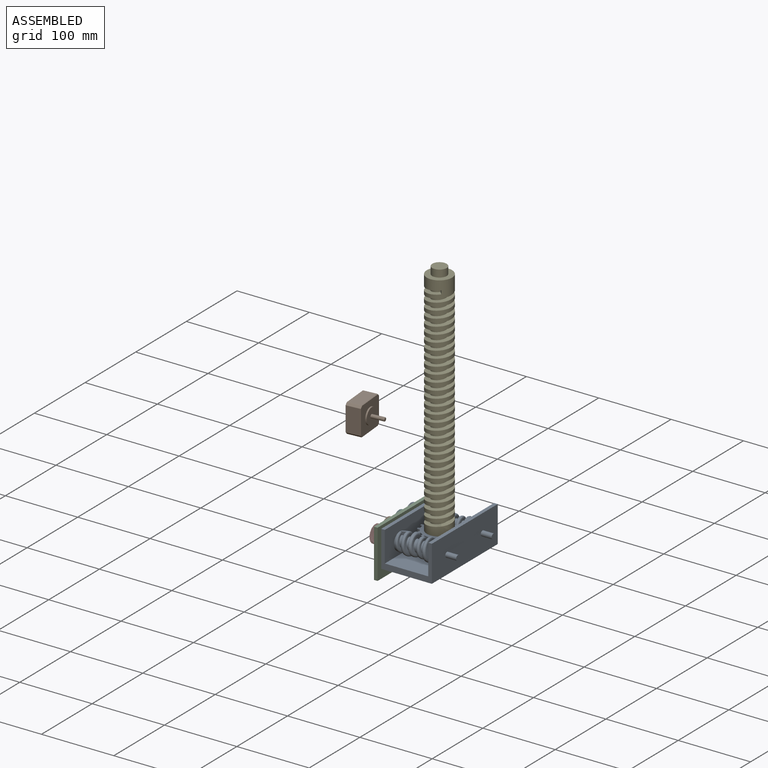
[diagram: assembled view]
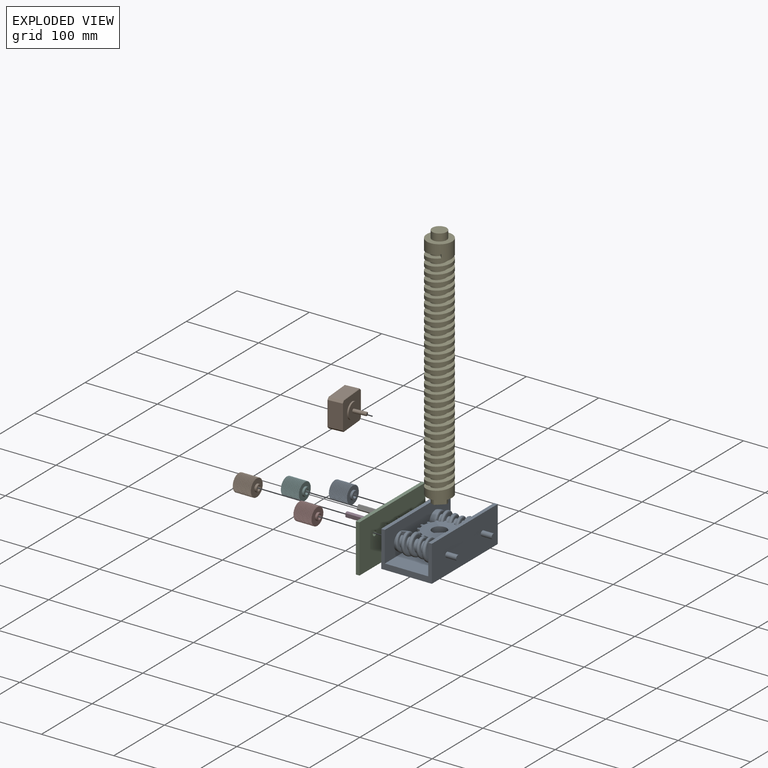
[diagram: exploded view]
GUIDED TOUR — MATED ASSEMBLY WITH SUBASSEMBLIES (Onshape document a461b10b5617b8be7ff6b4a0, AutoMate assembly a461b10b5617b8be7ff6b4a0_db991699ef675610364aaf17_997f8f6fb79155bb692a388e_default)

This assembly has 13 component occurrences arranged in 10 top-level units: 9 individual components plus 1 subassembly (S0). The tour has two levels: first the top level, where each subassembly is treated as one rigid unit; then each subassembly is toured internally in its own section (nesting deeper than one subassembly level is flattened into its subassembly's section).

Components are labeled P0..P12 across the whole record; subassembly units are labeled S0..S0. A mate is a constraint between two units; its type names the relative motion it leaves free:
  FASTENED — locks the two components together rigidly (no relative motion),
  REVOLUTE — leaves rotation about the listed axis free (a hinge).
Axis/direction vectors are unit vectors and 'through' points are millimeter coordinates, both in the assembly's world frame.

TOP-LEVEL MATES (between units; each subassembly's internal mates are listed in its own section)
  1. FASTENED "Fastened 2": P2 <-> S0, direction (1.000, 0.000, 0.000) through (-40.00, -35.00, 25.00) mm
  2. FASTENED "Fastened 5": P6 <-> P7, direction (-1.000, 0.000, 0.000) through (-67.00, 11.67, 25.00) mm
  3. REVOLUTE "Revolute 2": P3 <-> S0, axis (1.000, 0.000, 0.000) through (-35.00, -11.67, 25.00) mm
  4. FASTENED "Fastened 4": P11 <-> S0, direction (1.000, 0.000, 0.000) through (-36.00, 35.00, 25.00) mm
  5. FASTENED "Fastened 6": P12 <-> P3, direction (-1.000, 0.000, 0.000) through (-67.00, -11.67, 25.00) mm
  6. REVOLUTE "Revolute 1": P7 <-> S0, axis (1.000, 0.000, 0.000) through (-35.00, 11.67, 25.00) mm
  7. FASTENED "Fastened 3": S0 <-> P2, direction (-1.000, 0.000, 0.000) through (-40.00, 35.00, 25.00) mm
  8. FASTENED "Fastened 1": P4 <-> S0, direction (0.000, 0.000, -1.000) through (0.00, 0.00, 23.00) mm
  9. FASTENED "Fastened 7": S0 <-> P9, direction (-1.000, 0.000, 0.000) through (-40.00, -35.00, 25.00) mm

TOP-LEVEL ASSEMBLY ORDER
  1. P2 — the base component [order heuristic]
  2. P3 — core [order heuristic]
  3. P7 — core [order heuristic]
  4. P12 — core [order heuristic]
  5. P6 [order verified]
  6. S0 [order verified]
  7. P11 [order verified]
  8. P9 [order verified]
  9. P4 [order verified]
  10. P1 [order verified]
Order-tag legend:
  [order verified] — this step's position reverses a verified removal order: the component was checked to insert without passing through the ones already placed.
  [order heuristic] — the first 4 components form the assembly's core: parts whose collision-free extraction could not be verified, listed in mate-graph order.

Of the 13 component occurrences, 4 carry the full construction recipe — the FeatureScript program that regenerates the part's solid from scratch; the rest are supplied as boundary geometry only. Each toured unit is shown spotlighted twice — assembled, then exploded with a leader line back to its socket (green = recipe-attached component, orange = geometry-only, blue = subassembly unit; the rest desaturated gray).
NOTE — this tour is split across 2 documents so each fits a 32k-token context. This is document 1: the component sections continue in the remaining 1 document, each repeating the header above.
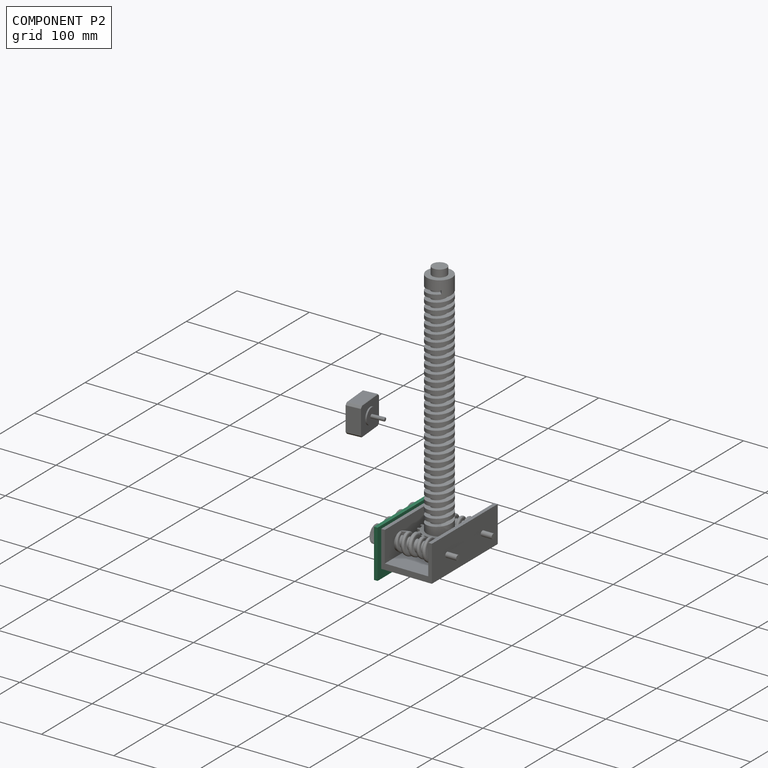
[diagram: component P2 — assembled]
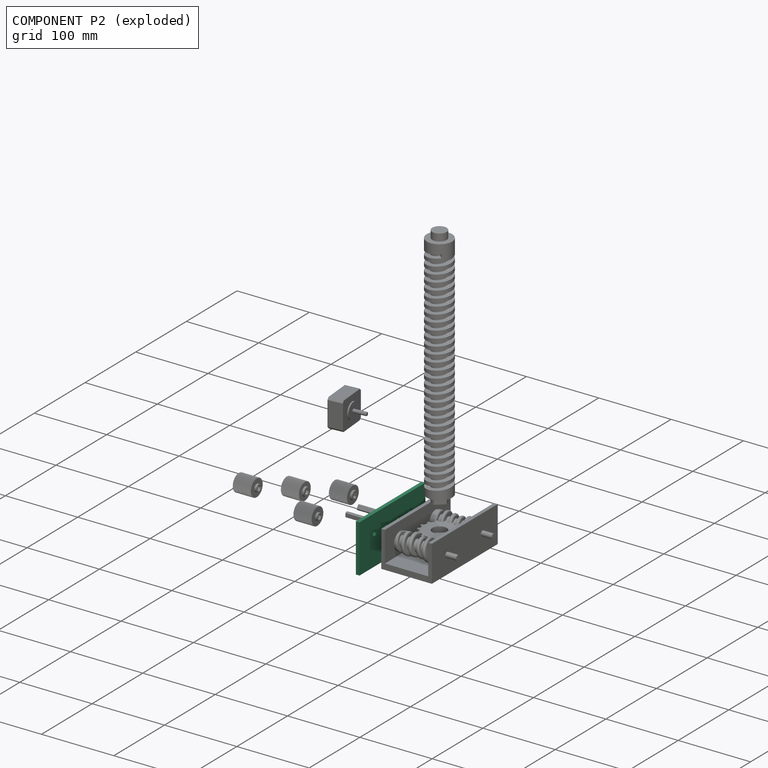
[diagram: component P2 — exploded]
COMPONENT P2 — recipe-attached (CADFS 00826265, mesh-verified: the recipe's output STEP matches this component's geometry to below the mesh-comparison resolution (tessellation chordal tolerance ~0.219 mm)).
Held by: FASTENED mate "Fastened 2" to P0; FASTENED mate "Fastened 3" to P0.
Construction recipe (FeatureScript — the CAD program that rebuilds this solid; sketch coordinates are in the units given by the * unit suffixes, e.g. mm):

FeatureScript 1511;
import(path : "onshape/std/geometry.fs", version : "1511.0");
import(path : "onshape/std/common.fs", version : "1511.0");
const mm = millimeter;
const VERTEX = EntityType.VERTEX;
const EDGE = EntityType.EDGE;
const FACE = EntityType.FACE;
const BODY = EntityType.BODY;
function v(x, y){return vector(x, y);}
function OD(order){return orderDisambiguation(order);}
function OSD(set){return originalSetDisambiguation(set);}
function TD(topology){return topologyDisambiguation(topology);}
function TDD(query){return trueDependencyDisambiguation(query);}
function sQuery(a, b, c) {return sketchEntityQuery(a, b, c);}

annotation { "Feature Type Name" : "Feature", "Feature Type Description" : "" }
export const myFeature = defineFeature(function(context is Context, id is Id, definition is map)
    precondition{}
    {
        {
            var Q0;
            Q0=qCreatedBy(makeId("Front.planeOp"),FACE);
            var sketch = newSketch(context, id + "F0", { "sketchPlane" : qUnion([Q0])});
            skLineSegment(sketch, "E0", {"start": v(-65, 33.23) * mm, "end": v(65, 33.23) * mm});
            skLineSegment(sketch, "E1", {"start": v(65, 33.23) * mm, "end": v(65, -33.23) * mm});
            skLineSegment(sketch, "E2", {"start": v(65, -33.23) * mm, "end": v(-65, -33.23) * mm});
            skLineSegment(sketch, "E3", {"start": v(-65, -33.23) * mm, "end": v(-65, 33.23) * mm});
            skLineSegment(sketch, "E4", {"start": v(0, 0) * mm, "end": v(0, 33.23) * mm, "construction": true});
            skLineSegment(sketch, "E5", {"start": v(0, 0) * mm, "end": v(-65, 0) * mm, "construction": true});
            skCircle(sketch, "E6", {"center": v(35, 8.23) * mm, "radius": 11.65 * mm});
            skCircle(sketch, "E7", {"center": v(-35, 8.23) * mm, "radius": 11.65 * mm});
            skLineSegment(sketch, "E8", {"start": v(-35, 8.23) * mm, "end": v(-35, 33.23) * mm, "construction": true});
            skLineSegment(sketch, "E9", {"start": v(-35, 8.23) * mm, "end": v(-65, 8.23) * mm, "construction": true});
            skLineSegment(sketch, "E10", {"start": v(65, 8.23) * mm, "end": v(35, 8.23) * mm, "construction": true});
            skLineSegment(sketch, "E11", {"start": v(35, 8.23) * mm, "end": v(35, 33.23) * mm, "construction": true});
            skLineSegment(sketch, "E12", {"start": v(-35, 8.23) * mm, "end": v(0, 8.23) * mm, "construction": true});
            skLineSegment(sketch, "E13", {"start": v(35, 8.23) * mm, "end": v(0, 8.23) * mm, "construction": true});
            skCircle(sketch, "E14", {"center": v(-35, 8.23) * mm, "radius": 3.5 * mm});
            skCircle(sketch, "E15", {"center": v(35, 8.23) * mm, "radius": 3.5 * mm});
            skLineSegment(sketch, "E16", {"start": v(-23.33, 8.23) * mm, "end": v(-23.33, 33.23) * mm, "construction": true});
            skLineSegment(sketch, "E17", {"start": v(-11.67, 8.23) * mm, "end": v(-11.67, 33.23) * mm, "construction": true});
            skLineSegment(sketch, "E18", {"start": v(0, 8.23) * mm, "end": v(0, 33.23) * mm});
            skLineSegment(sketch, "E19", {"start": v(11.67, 8.23) * mm, "end": v(11.67, 33.23) * mm, "construction": true});
            skLineSegment(sketch, "E20", {"start": v(23.33, 33.23) * mm, "end": v(23.33, 8.23) * mm, "construction": true});
            skCircle(sketch, "E21", {"center": v(-11.67, 8.23) * mm, "radius": 11.65 * mm});
            skCircle(sketch, "E22", {"center": v(11.67, 8.23) * mm, "radius": 11.65 * mm});
            skCircle(sketch, "E23", {"center": v(-11.67, 8.23) * mm, "radius": 3.5 * mm});
            skCircle(sketch, "E24", {"center": v(11.67, 8.23) * mm, "radius": 3.5 * mm});
            skSolve(sketch);
        }
        {
            var Q0;
            Q0=makeQuery(id+"F0.imprint","IMPRINT",FACE,{"disambiguationData":[TD([[makeQuery(id+"F0.imprint","IMPRINT",EDGE,{"derivedFrom":sQuery(id+"F0.wireOp",EDGE,"E21")}),1.0]])]});
            var Q1;
            Q1=makeQuery(id+"F0.imprint","IMPRINT",FACE,{"disambiguationData":[TD([[makeQuery(id+"F0.imprint","IMPRINT",EDGE,{"derivedFrom":sQuery(id+"F0.wireOp",EDGE,"E22")}),1.0]])]});
            var Q2;
            Q2=makeQuery(id+"F0.imprint","IMPRINT",FACE,{"disambiguationData":[TD([[makeQuery(id+"F0.imprint","IMPRINT",EDGE,{"derivedFrom":sQuery(id+"F0.wireOp",EDGE,"E6")}),1.0]])]});
            var Q3;
            Q3=makeQuery(id+"F0.imprint","IMPRINT",FACE,{"disambiguationData":[TD([[makeQuery(id+"F0.imprint","IMPRINT",EDGE,{"derivedFrom":sQuery(id+"F0.wireOp",EDGE,"E7")}),1.0]])]});
            var Q4;
            {var subQ0=sQuery(id+"F0.wireOp",EDGE,"E1");Q4=makeQuery(id+"F0.imprint","IMPRINT",FACE,{"disambiguationData":[TD([[makeQuery(id+"F0.imprint","IMPRINT",EDGE,{"derivedFrom":subQ0}),-1.0]])]});}
            extrude(context, id + "F1", {"entities" : qUnion([Q0, Q1, Q2, Q3, Q4]), "endBound" : BoundingType.SYMMETRIC, "depth" : 5 * mm, "offsetDistance" : 25 * mm});
        }
        {
            var Q0;
            Q0=makeQuery(id+"F0.imprint","IMPRINT",FACE,{"disambiguationData":[TD([[makeQuery(id+"F0.imprint","IMPRINT",EDGE,{"derivedFrom":sQuery(id+"F0.wireOp",EDGE,"E6")}),1.0]])]});
            extrude(context, id + "F2", {"entities" : qUnion([Q0]), "operationType" : NewBodyOperationType.ADD, "depth" : 4 * mm, "offsetDistance" : 25 * mm});
        }
        {
            var Q0;
            Q0=makeQuery(id+"F0.imprint","IMPRINT",FACE,{"disambiguationData":[TD([[makeQuery(id+"F0.imprint","IMPRINT",EDGE,{"derivedFrom":sQuery(id+"F0.wireOp",EDGE,"E7")}),1.0]])]});
            extrude(context, id + "F3", {"entities" : qUnion([Q0]), "operationType" : NewBodyOperationType.ADD, "depth" : 4 * mm, "offsetDistance" : 25 * mm});
        }
        {
            var Q0;
            Q0=makeQuery(id+"F0.imprint","IMPRINT",FACE,{"disambiguationData":[TD([[makeQuery(id+"F0.imprint","IMPRINT",EDGE,{"derivedFrom":sQuery(id+"F0.wireOp",EDGE,"E21")}),1.0]])]});
            extrude(context, id + "F4", {"entities" : qUnion([Q0]), "operationType" : NewBodyOperationType.ADD, "depth" : 4 * mm, "offsetDistance" : 25 * mm});
        }
        {
            var Q0;
            Q0=makeQuery(id+"F0.imprint","IMPRINT",FACE,{"disambiguationData":[TD([[makeQuery(id+"F0.imprint","IMPRINT",EDGE,{"derivedFrom":sQuery(id+"F0.wireOp",EDGE,"E22")}),1.0]])]});
            extrude(context, id + "F5", {"entities" : qUnion([Q0]), "operationType" : NewBodyOperationType.ADD, "depth" : 4 * mm, "offsetDistance" : 25 * mm});
        }
        {
            var Q0;
            Q0=makeQuery(id+"F0.imprint","IMPRINT",FACE,{"disambiguationData":[TD([[makeQuery(id+"F0.imprint","IMPRINT",EDGE,{"derivedFrom":sQuery(id+"F0.wireOp",EDGE,"E22")}),1.0]])]});
            extrude(context, id + "F6", {"entities" : qUnion([Q0]), "operationType" : NewBodyOperationType.ADD, "depth" : 4 * mm, "offsetDistance" : 25 * mm});
        }
    });
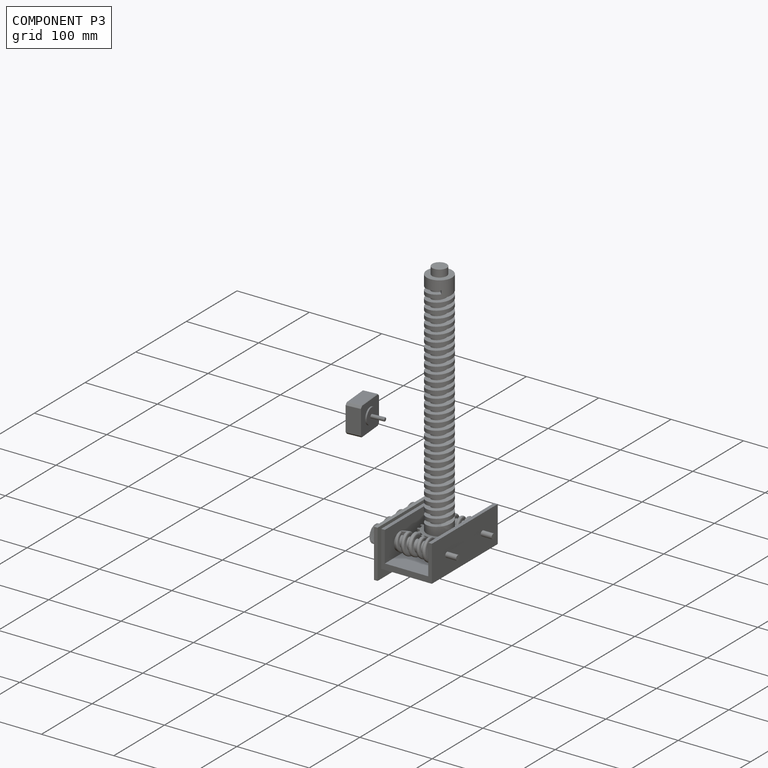
[diagram: component P3 — assembled]
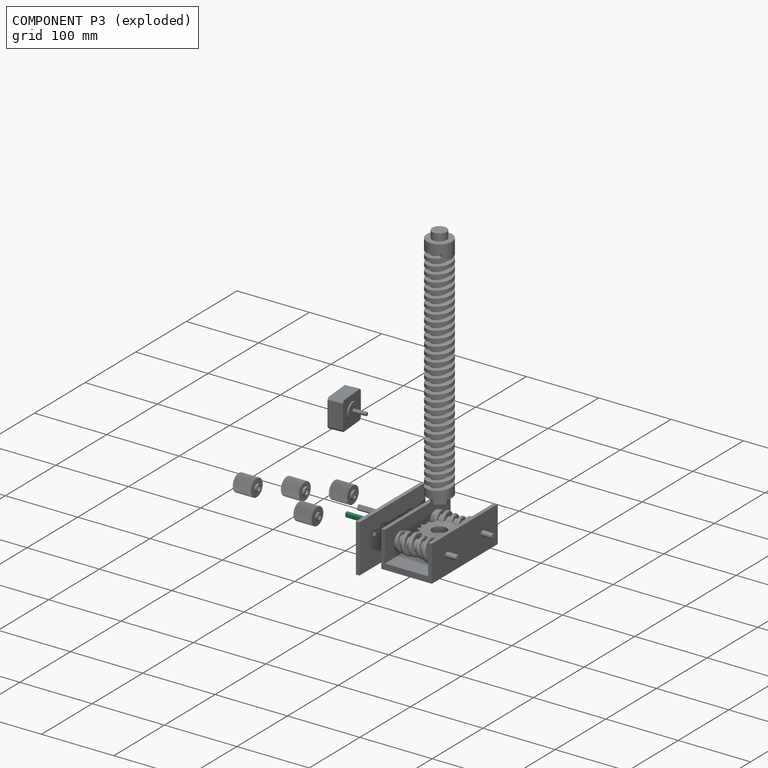
[diagram: component P3 — exploded]
COMPONENT P3 — recipe-attached (CADFS 00826257, mesh-verified: the recipe's output STEP matches this component's geometry to below the mesh-comparison resolution (tessellation chordal tolerance ~0.0471 mm)).
Held by: REVOLUTE mate "Revolute 2" to P0; FASTENED mate "Fastened 6" to P12.
Construction recipe (FeatureScript — the CAD program that rebuilds this solid; sketch coordinates are in the units given by the * unit suffixes, e.g. mm):

FeatureScript 1511;
import(path : "onshape/std/geometry.fs", version : "1511.0");
import(path : "onshape/std/common.fs", version : "1511.0");
const mm = millimeter;
const VERTEX = EntityType.VERTEX;
const EDGE = EntityType.EDGE;
const FACE = EntityType.FACE;
const BODY = EntityType.BODY;
function v(x, y){return vector(x, y);}
function OD(order){return orderDisambiguation(order);}
function OSD(set){return originalSetDisambiguation(set);}
function TD(topology){return topologyDisambiguation(topology);}
function TDD(query){return trueDependencyDisambiguation(query);}
function sQuery(a, b, c) {return sketchEntityQuery(a, b, c);}

annotation { "Feature Type Name" : "Feature", "Feature Type Description" : "" }
export const myFeature = defineFeature(function(context is Context, id is Id, definition is map)
    precondition{}
    {
        {
            var Q0;
            Q0=qCreatedBy(makeId("Right.planeOp"),FACE);
            var sketch = newSketch(context, id + "F0", { "sketchPlane" : qUnion([Q0])});
            skCircle(sketch, "E0", {"center": v(0, 0) * mm, "radius": 3.5 * mm});
            skLineSegment(sketch, "E1", {"start": v(0, 0) * mm, "end": v(0, 3.5) * mm});
            skLineSegment(sketch, "E2", {"start": v(0, 0) * mm, "end": v(0, -3.5) * mm});
            skLineSegment(sketch, "E3", {"start": v(0, 2.5) * mm, "end": v(-2.45, 2.5) * mm});
            skLineSegment(sketch, "E4", {"start": v(0, 2.5) * mm, "end": v(2.45, 2.5) * mm});
            skSolve(sketch);
        }
        {
            var Q0;
            {var subQ0=sQuery(id+"F0.wireOp",EDGE,"E2");Q0=makeQuery(id+"F0.imprint","IMPRINT",FACE,{"disambiguationData":[TD([[makeQuery(id+"F0.imprint","IMPRINT",EDGE,{"derivedFrom":subQ0}),-1.0]])]});}
            var Q1;
            {var subQ0=sQuery(id+"F0.wireOp",EDGE,"E2");Q1=makeQuery(id+"F0.imprint","IMPRINT",FACE,{"disambiguationData":[TD([[makeQuery(id+"F0.imprint","IMPRINT",EDGE,{"derivedFrom":subQ0}),1.0]])]});}
            extrude(context, id + "F1", {"entities" : qUnion([Q0, Q1]), "endBound" : BoundingType.SYMMETRIC, "depth" : 30 * mm, "offsetDistance" : 25 * mm});
        }
    });
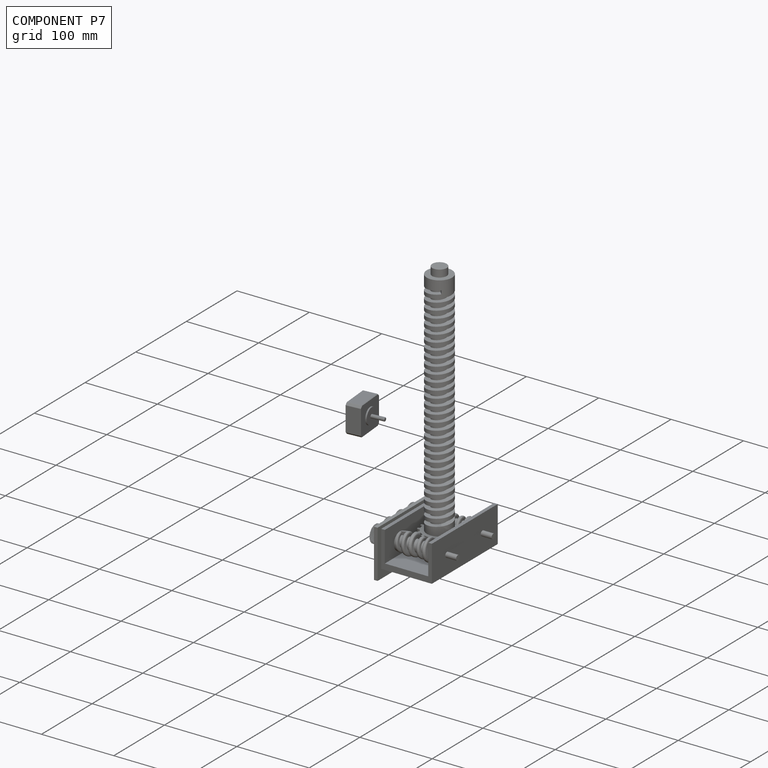
[diagram: component P7 — assembled]
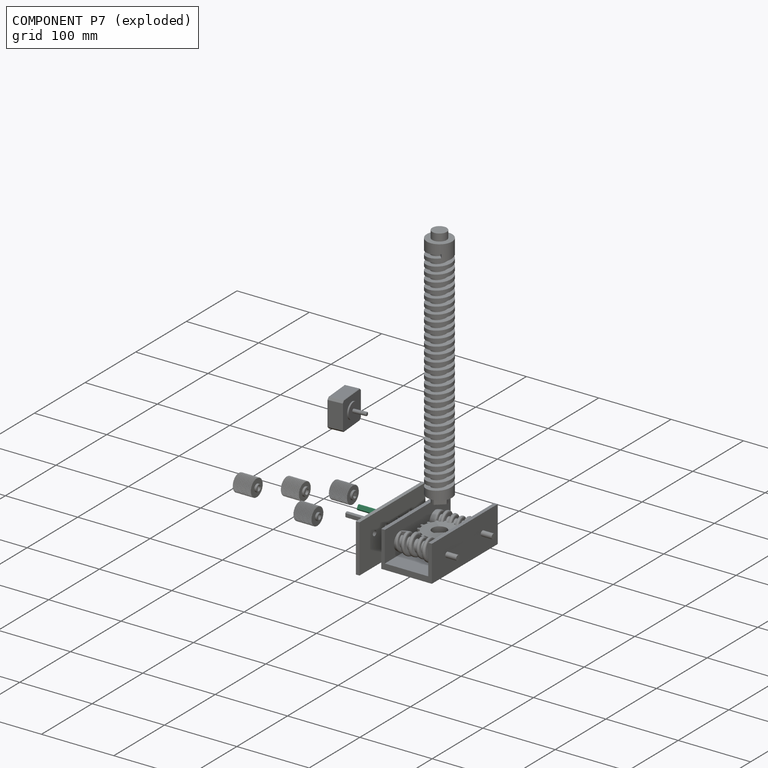
[diagram: component P7 — exploded]
COMPONENT P7 — same part as P3 (CADFS 00826257); its construction recipe is shown at P3.
Held by: FASTENED mate "Fastened 5" to P6; REVOLUTE mate "Revolute 1" to P0.
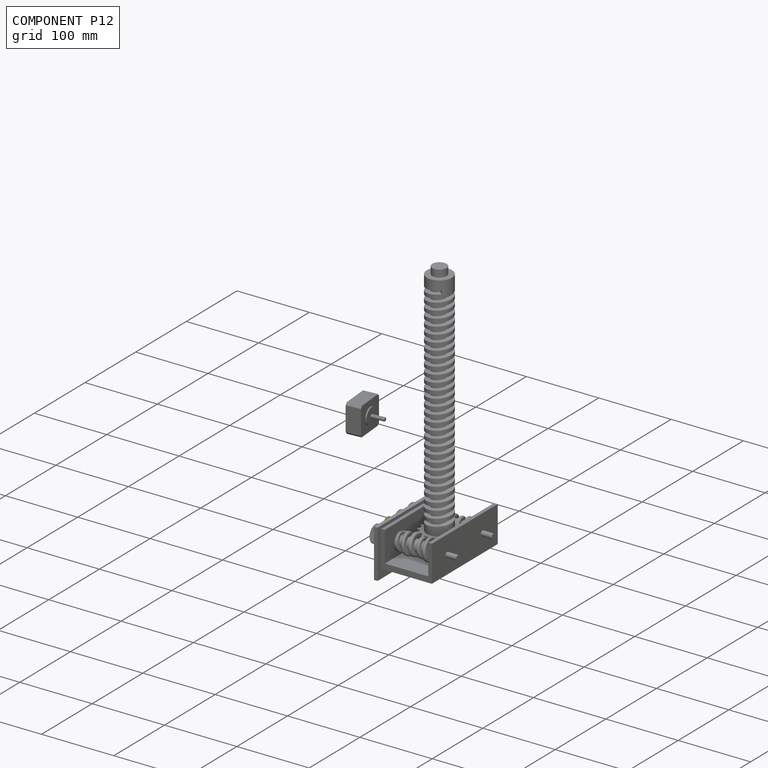
[diagram: component P12 — assembled]
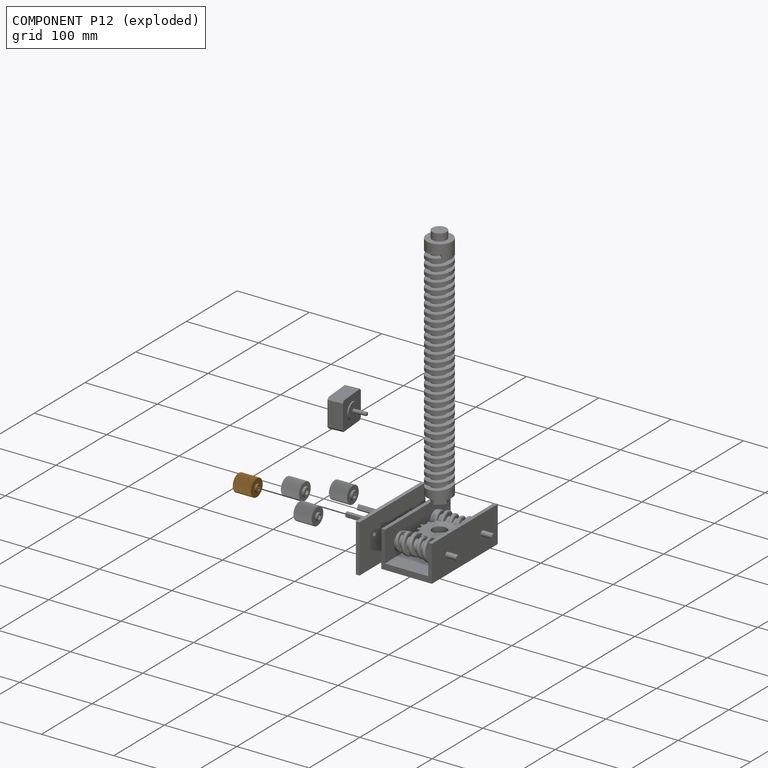
[diagram: component P12 — exploded]
COMPONENT P12 — geometry summary (no construction recipe available for this part):
  bounding box: 31.0 x 23.9 x 23.9 mm
  B-rep topology: 1 solid, 128 faces, 746 edges
  volume: 10179 mm^3 (57% of its bounding box)
Held by: FASTENED mate "Fastened 6" to P3.
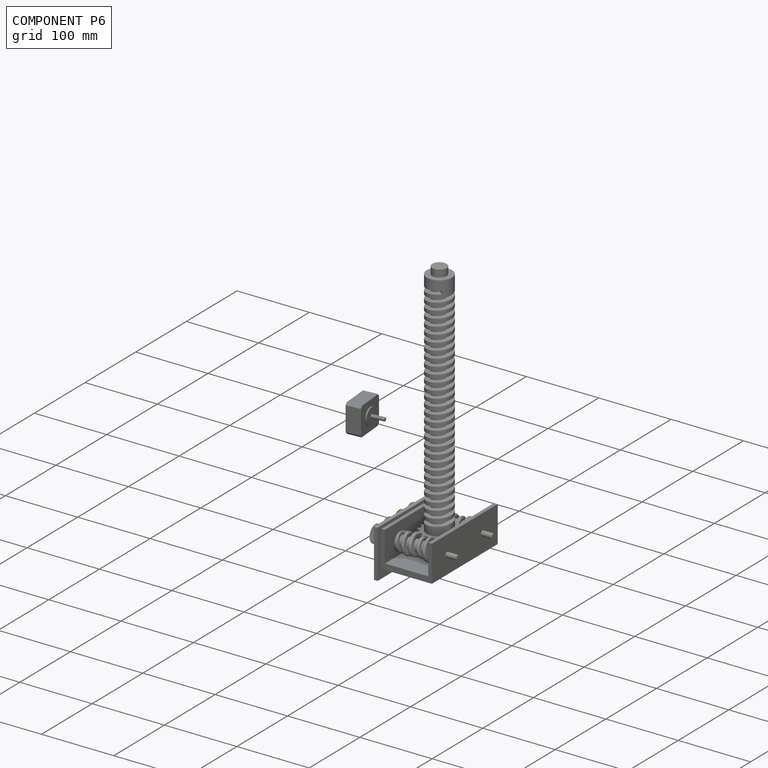
[diagram: component P6 — assembled]
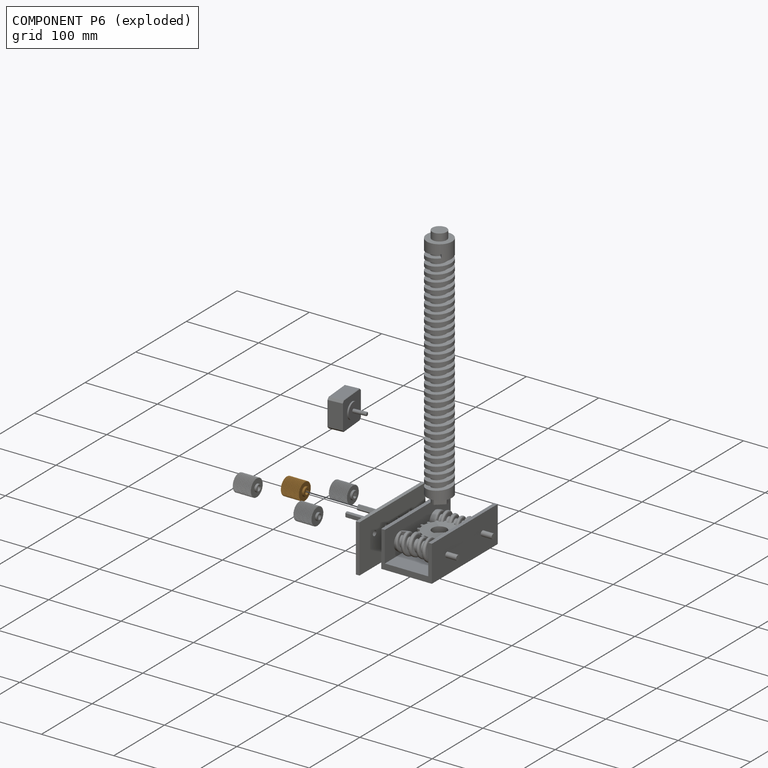
[diagram: component P6 — exploded]
COMPONENT P6 — geometry summary (no construction recipe available for this part):
  bounding box: 31.0 x 23.9 x 23.9 mm
  B-rep topology: 1 solid, 128 faces, 746 edges
  volume: 10179 mm^3 (57% of its bounding box)
Held by: FASTENED mate "Fastened 5" to P7.
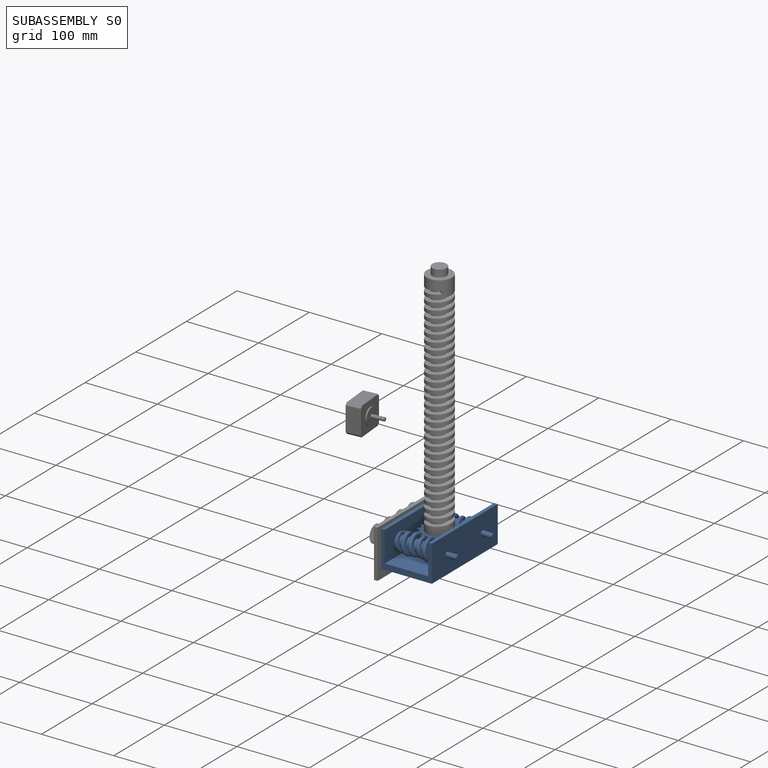
[diagram: subassembly S0 — assembled]
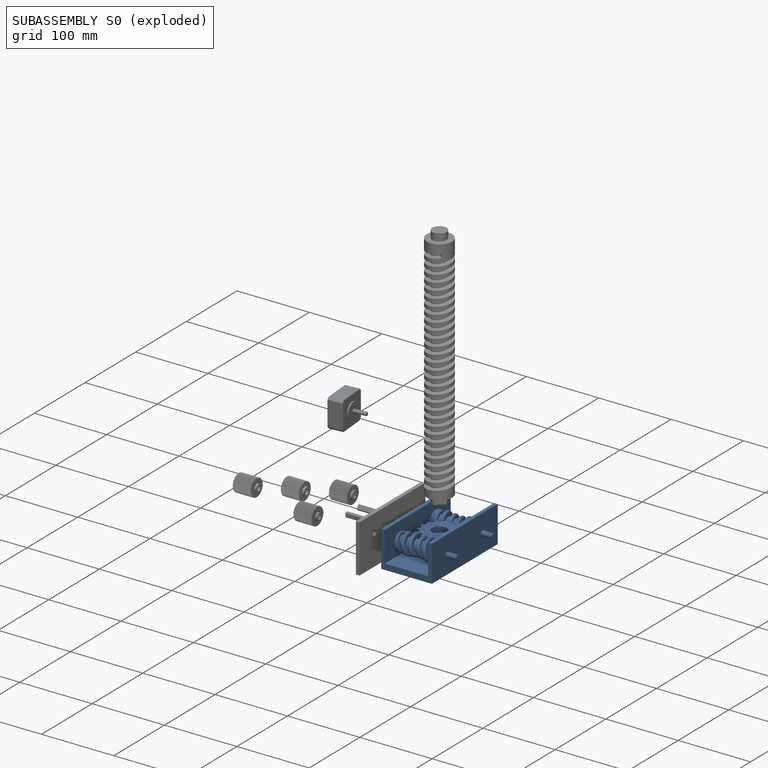
[diagram: subassembly S0 — exploded]
SUBASSEMBLY S0 — 4 components (P0, P5, P8, P10), of which 0 recipe-attached; toured below.
Held by: FASTENED mate "Fastened 2" to P2; REVOLUTE mate "Revolute 2" to P3; FASTENED mate "Fastened 4" to P11; REVOLUTE mate "Revolute 1" to P7; FASTENED mate "Fastened 3" to P2; FASTENED mate "Fastened 1" to P4; FASTENED mate "Fastened 7" to P9.
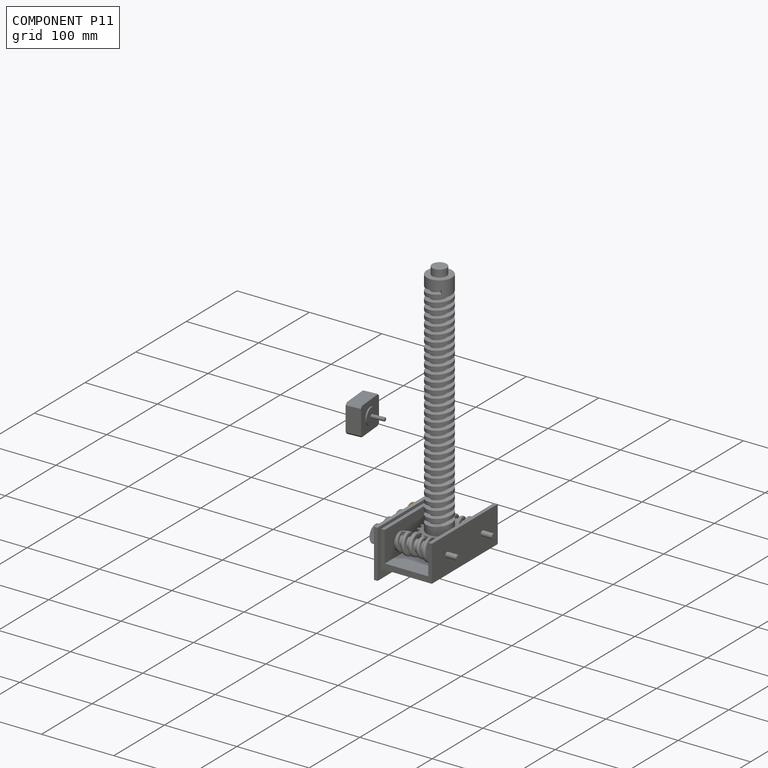
[diagram: component P11 — assembled]
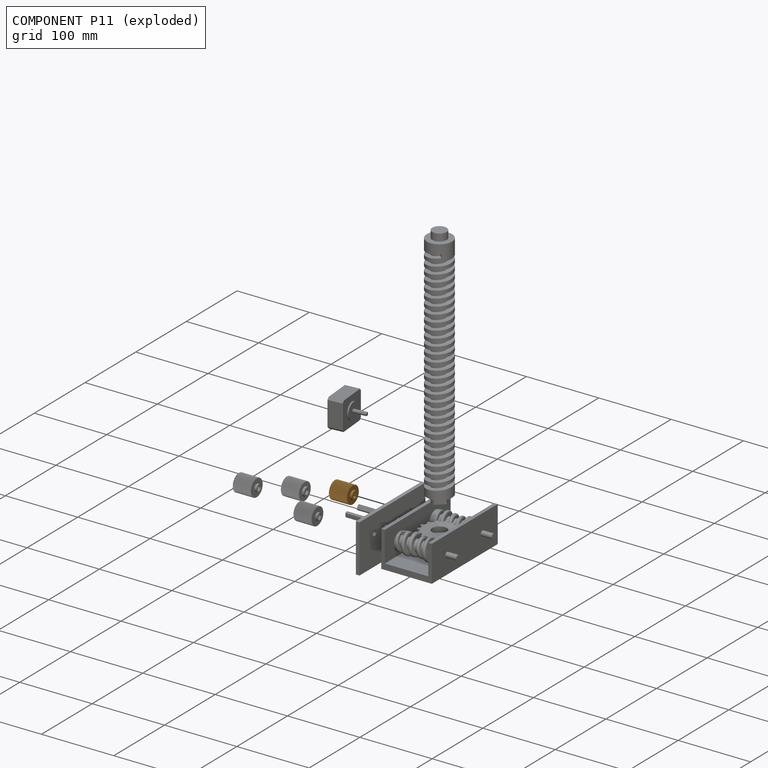
[diagram: component P11 — exploded]
COMPONENT P11 — geometry summary (no construction recipe available for this part):
  bounding box: 31.0 x 23.9 x 23.9 mm
  B-rep topology: 1 solid, 128 faces, 746 edges
  volume: 10179 mm^3 (57% of its bounding box)
Held by: FASTENED mate "Fastened 4" to P0.
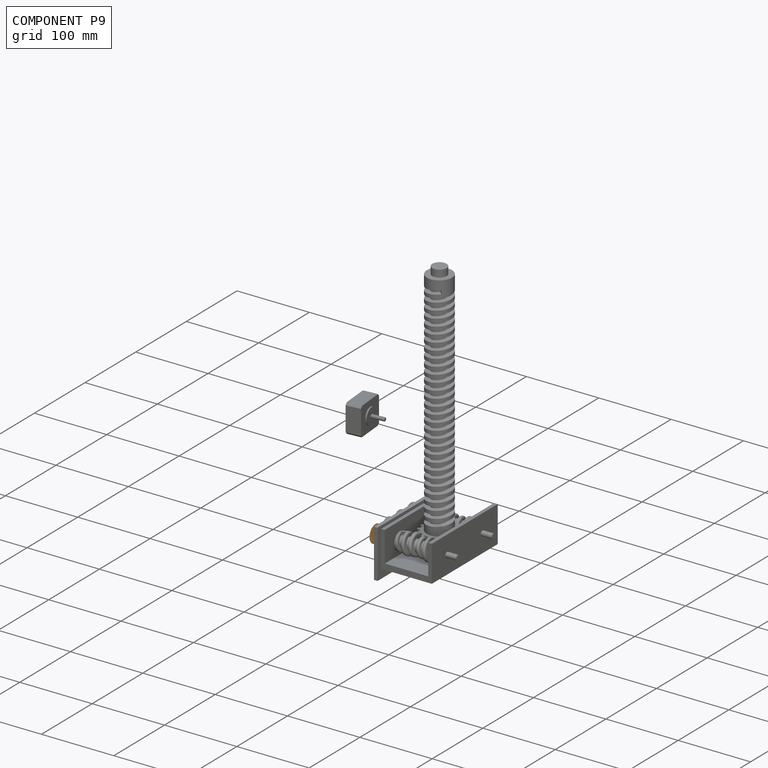
[diagram: component P9 — assembled]
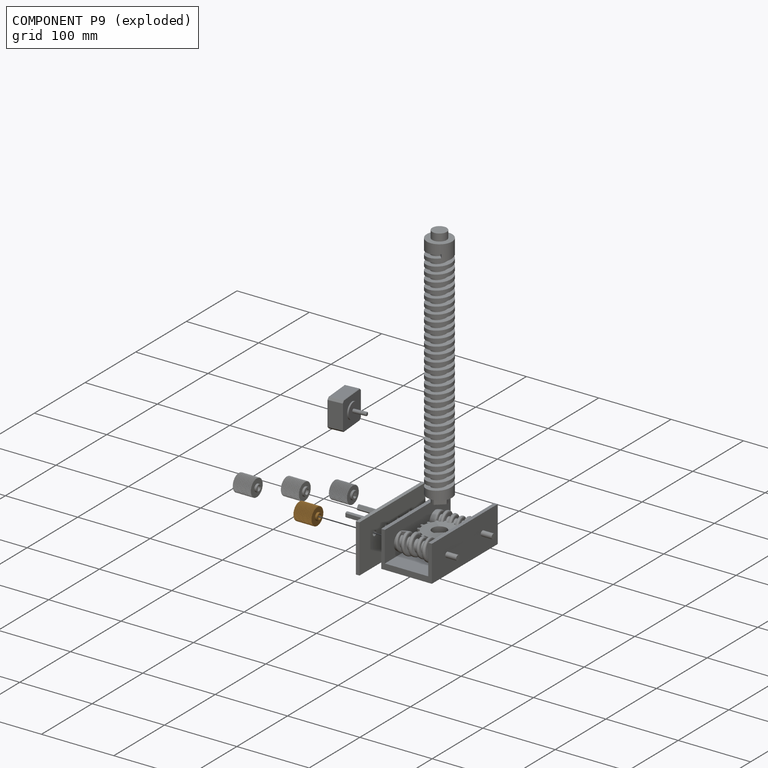
[diagram: component P9 — exploded]
COMPONENT P9 — geometry summary (no construction recipe available for this part):
  bounding box: 31.0 x 23.9 x 23.9 mm
  B-rep topology: 1 solid, 128 faces, 746 edges
  volume: 10179 mm^3 (57% of its bounding box)
Held by: FASTENED mate "Fastened 7" to P0.
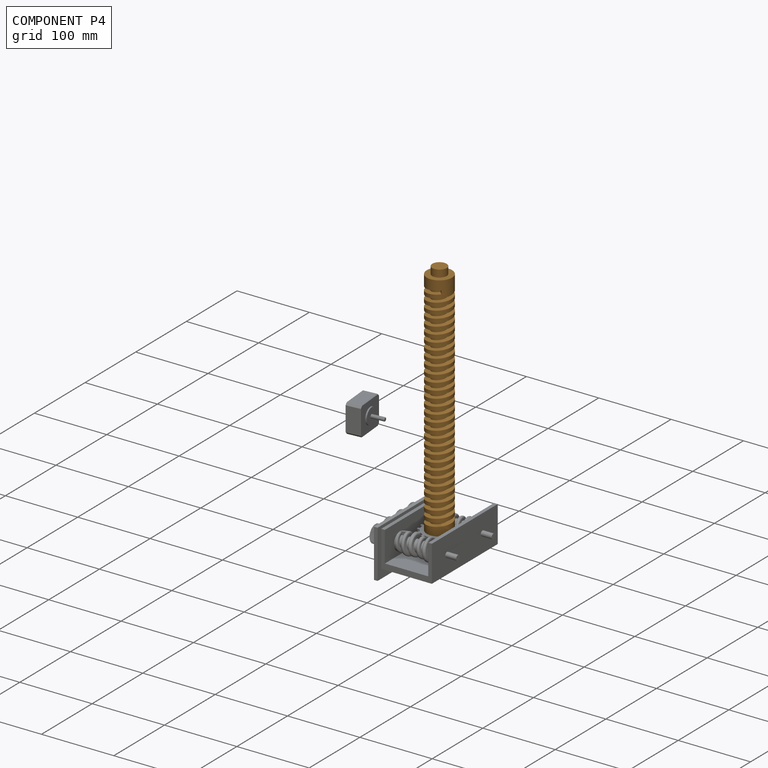
[diagram: component P4 — assembled]
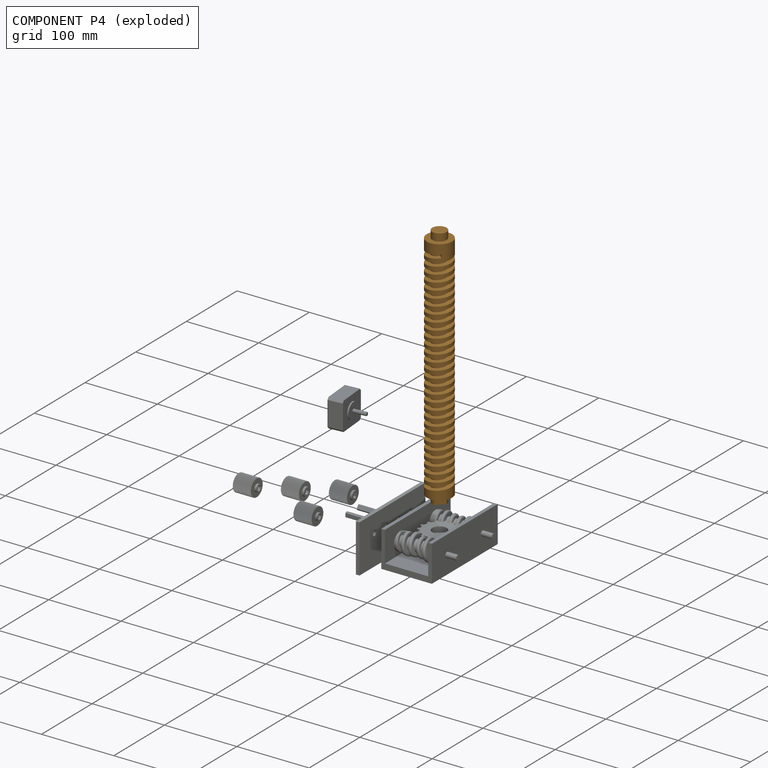
[diagram: component P4 — exploded]
COMPONENT P4 — geometry summary (no construction recipe available for this part):
  bounding box: 340.0 x 35.0 x 35.0 mm
  B-rep topology: 1 solid, 42 faces, 234 edges
  volume: 221733 mm^3 (53% of its bounding box)
Held by: FASTENED mate "Fastened 1" to P0.
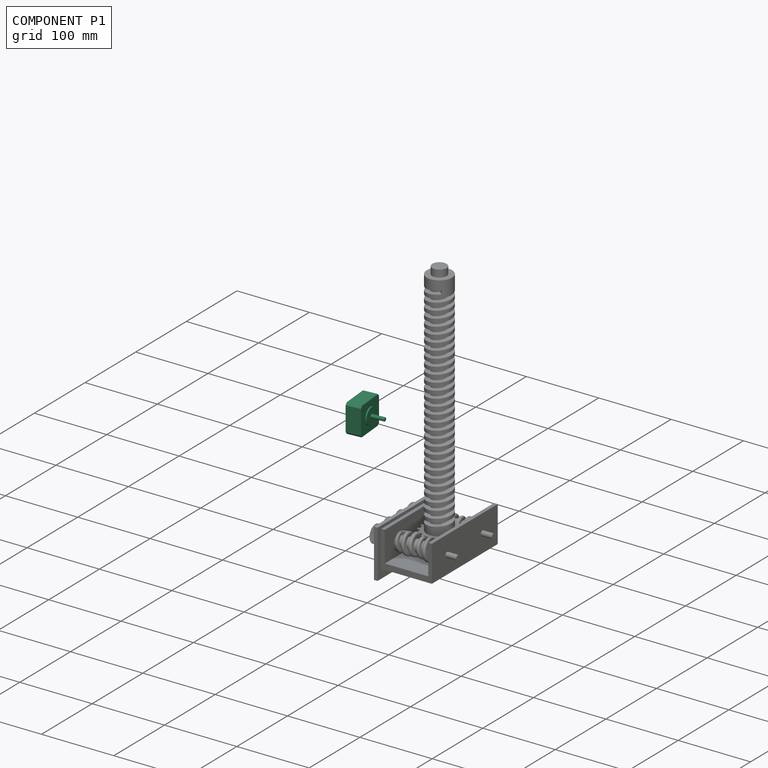
[diagram: component P1 — assembled]
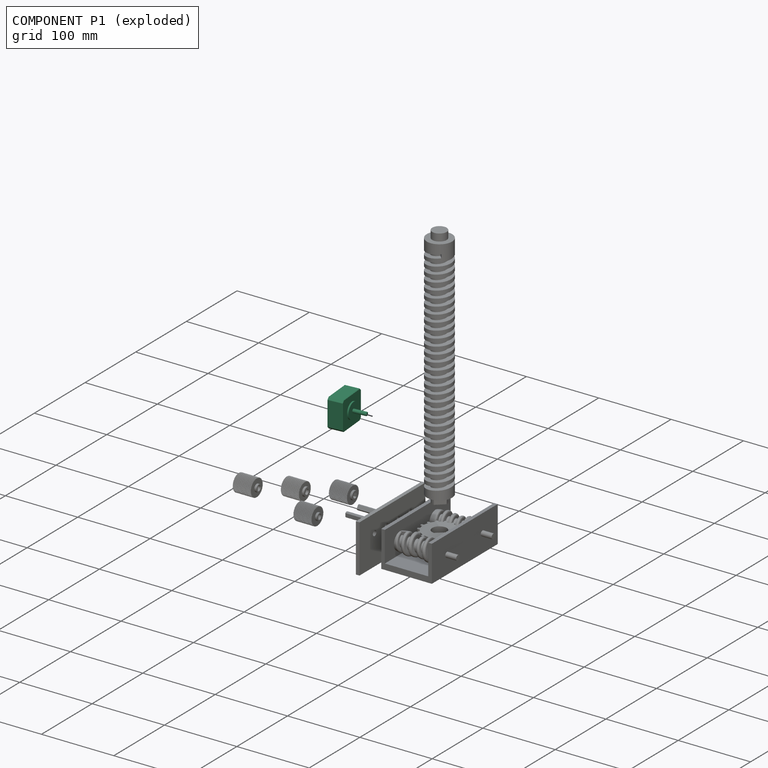
[diagram: component P1 — exploded]
COMPONENT P1 — recipe-attached (CADFS 00826270, mesh-verified: the recipe's output STEP matches this component's geometry to below the mesh-comparison resolution (tessellation chordal tolerance ~0.106 mm)).
Held by: no mates (free).
Construction recipe (FeatureScript — the CAD program that rebuilds this solid; sketch coordinates are in the units given by the * unit suffixes, e.g. mm):

FeatureScript 1511;
import(path : "onshape/std/geometry.fs", version : "1511.0");
import(path : "onshape/std/common.fs", version : "1511.0");
const mm = millimeter;
const VERTEX = EntityType.VERTEX;
const EDGE = EntityType.EDGE;
const FACE = EntityType.FACE;
const BODY = EntityType.BODY;
function v(x, y){return vector(x, y);}
function OD(order){return orderDisambiguation(order);}
function OSD(set){return originalSetDisambiguation(set);}
function TD(topology){return topologyDisambiguation(topology);}
function TDD(query){return trueDependencyDisambiguation(query);}
function sQuery(a, b, c) {return sketchEntityQuery(a, b, c);}

annotation { "Feature Type Name" : "Feature", "Feature Type Description" : "" }
export const myFeature = defineFeature(function(context is Context, id is Id, definition is map)
    precondition{}
    {
        {
            var Q0;
            Q0=qCreatedBy(makeId("Front.planeOp"),FACE);
            var sketch = newSketch(context, id + "F0", { "sketchPlane" : qUnion([Q0])});
            skCircle(sketch, "E0", {"center": v(0, 0) * mm, "radius": 2.5 * mm});
            skLineSegment(sketch, "E1", {"start": v(-1.31, 2.13) * mm, "end": v(1.31, 2.13) * mm});
            skCircle(sketch, "E2", {"center": v(0, 0) * mm, "radius": 11 * mm});
            skLineSegment(sketch, "E3", {"start": v(-21, 0) * mm, "end": v(-21, 15.5) * mm});
            skLineSegment(sketch, "E4", {"start": v(-21, 15.5) * mm, "end": v(-15.5, 21) * mm});
            skLineSegment(sketch, "E5", {"start": v(-15.5, 21) * mm, "end": v(0, 21) * mm});
            skLineSegment(sketch, "E6", {"start": v(0, 0) * mm, "end": v(-21, 0) * mm, "construction": true});
            skLineSegment(sketch, "E7", {"start": v(0, 0) * mm, "end": v(0, 21) * mm, "construction": true});
            skCircle(sketch, "E8", {"center": v(-15.7, 15.69) * mm, "radius": 1.5 * mm});
            skLineSegment(sketch, "E9.MirrorCS", {"start": v(15.5, 21) * mm, "end": v(0, 21) * mm});
            skLineSegment(sketch, "E10.MirrorCS", {"start": v(21, 15.5) * mm, "end": v(15.5, 21) * mm});
            skLineSegment(sketch, "E11.MirrorCS", {"start": v(21, 0) * mm, "end": v(21, 15.5) * mm});
            skCircle(sketch, "E12.MirrorC", {"center": v(15.7, 15.69) * mm, "radius": 1.5 * mm});
            skLineSegment(sketch, "E13", {"start": v(0, 0) * mm, "end": v(21, 0) * mm, "construction": true});
            skLineSegment(sketch, "E14.MirrorCS", {"start": v(15.5, -21) * mm, "end": v(0, -21) * mm});
            skLineSegment(sketch, "E15.MirrorCS", {"start": v(21, -15.5) * mm, "end": v(15.5, -21) * mm});
            skLineSegment(sketch, "E16.MirrorCS", {"start": v(21, 0) * mm, "end": v(21, -15.5) * mm});
            skCircle(sketch, "E17.MirrorC", {"center": v(15.7, -15.69) * mm, "radius": 1.5 * mm});
            skLineSegment(sketch, "E18", {"start": v(0, -21) * mm, "end": v(0, 0) * mm, "construction": true});
            skLineSegment(sketch, "E19.MirrorCS", {"start": v(-21, 0) * mm, "end": v(-21, -15.5) * mm});
            skLineSegment(sketch, "E20.MirrorCS", {"start": v(-21, -15.5) * mm, "end": v(-15.5, -21) * mm});
            skLineSegment(sketch, "E21.MirrorCS", {"start": v(-15.5, -21) * mm, "end": v(0, -21) * mm});
            skCircle(sketch, "E22.MirrorC", {"center": v(-15.7, -15.69) * mm, "radius": 1.5 * mm});
            skLineSegment(sketch, "E23", {"start": v(0, -21.57) * mm, "end": v(0, -21) * mm});
            skLineSegment(sketch, "E24", {"start": v(0, -21.57) * mm, "end": v(-2.98, -21.57) * mm});
            skLineSegment(sketch, "E25", {"start": v(-2.98, -21.57) * mm, "end": v(-2.98, -21) * mm});
            skLineSegment(sketch, "E26", {"start": v(-2, -21.57) * mm, "end": v(-2, -29.07) * mm});
            skLineSegment(sketch, "E27", {"start": v(-2, -29.07) * mm, "end": v(-1, -29.07) * mm});
            skLineSegment(sketch, "E28", {"start": v(-1, -29.07) * mm, "end": v(-1, -21.57) * mm});
            skLineSegment(sketch, "E29", {"start": v(-1, -21.57) * mm, "end": v(0, -21.57) * mm});
            skLineSegment(sketch, "E30", {"start": v(0, -21.57) * mm, "end": v(0, -29.1) * mm});
            skLineSegment(sketch, "E31", {"start": v(0, -29.1) * mm, "end": v(-1, -29.07) * mm});
            skLineSegment(sketch, "E32.MirrorCS", {"start": v(2, -21.57) * mm, "end": v(2, -29.07) * mm});
            skLineSegment(sketch, "E33.MirrorCS", {"start": v(1, -29.07) * mm, "end": v(1, -21.57) * mm});
            skLineSegment(sketch, "E34.MirrorCS", {"start": v(2, -29.07) * mm, "end": v(1, -29.07) * mm});
            skLineSegment(sketch, "E35.MirrorCS", {"start": v(0, -29.1) * mm, "end": v(1, -29.07) * mm});
            skLineSegment(sketch, "E36.MirrorCS", {"start": v(0, -21.57) * mm, "end": v(2.98, -21.57) * mm});
            skLineSegment(sketch, "E37.MirrorCS", {"start": v(2.98, -21.57) * mm, "end": v(2.98, -21) * mm});
            skLineSegment(sketch, "E38", {"start": v(0, 0) * mm, "end": v(0, 11) * mm});
            skLineSegment(sketch, "E39", {"start": v(0, 0) * mm, "end": v(0, -2.5) * mm});
            skLineSegment(sketch, "E40", {"start": v(0, 0) * mm, "end": v(-1.31, 2.13) * mm, "construction": true});
            skLineSegment(sketch, "E41", {"start": v(0, 0) * mm, "end": v(1.31, 2.13) * mm, "construction": true});
            skSolve(sketch);
        }
        {
            var Q0;
            Q0=qCreatedBy(makeId("Right.planeOp"),FACE);
            var sketch = newSketch(context, id + "F1", { "sketchPlane" : qUnion([Q0])});
            skLineSegment(sketch, "E42", {"start": v(-6.62, 2.5) * mm, "end": v(-24.6, 2.5) * mm});
            skLineSegment(sketch, "E43", {"start": v(-24.6, 2.5) * mm, "end": v(-24.6, 0) * mm});
            skLineSegment(sketch, "E44", {"start": v(-24.6, -2.5) * mm, "end": v(-6.62, -2.5) * mm});
            skLineSegment(sketch, "E45", {"start": v(-6.62, 2.5) * mm, "end": v(-6.62, 0) * mm});
            skLineSegment(sketch, "E46", {"start": v(0, 0) * mm, "end": v(-24.6, 0) * mm, "construction": true});
            skLineSegment(sketch, "E47", {"start": v(-4.6, 20) * mm, "end": v(15.4, 20) * mm});
            skLineSegment(sketch, "E48", {"start": v(-6.6, 11) * mm, "end": v(-4.6, 11) * mm});
            skLineSegment(sketch, "E49", {"start": v(-6.6, 11) * mm, "end": v(-6.62, 2.5) * mm});
            skLineSegment(sketch, "E50", {"start": v(-4.6, 20) * mm, "end": v(-4.6, 11) * mm});
            skLineSegment(sketch, "E51", {"start": v(1, 20) * mm, "end": v(1, 13.33) * mm});
            skLineSegment(sketch, "E52", {"start": v(9.34, 20) * mm, "end": v(9.34, 13.33) * mm});
            skLineSegment(sketch, "E53", {"start": v(1, 13.33) * mm, "end": v(9.34, 13.33) * mm});
            skLineSegment(sketch, "E54", {"start": v(15.4, 0) * mm, "end": v(15.4, 20) * mm});
            skLineSegment(sketch, "E55", {"start": v(-4.6, 9.38) * mm, "end": v(1, 9.38) * mm});
            skLineSegment(sketch, "E56", {"start": v(1, 9.38) * mm, "end": v(9.34, 9.38) * mm, "construction": true});
            skLineSegment(sketch, "E57", {"start": v(9.34, 9.38) * mm, "end": v(15.4, 9.38) * mm});
            skLineSegment(sketch, "E58", {"start": v(-4.6, 11) * mm, "end": v(-4.6, 0) * mm});
            skLineSegment(sketch, "E59", {"start": v(0, 13.33) * mm, "end": v(1, 13.33) * mm});
            skLineSegment(sketch, "E60", {"start": v(0, 0) * mm, "end": v(0, 13.33) * mm});
            skLineSegment(sketch, "E61", {"start": v(9.34, 13.33) * mm, "end": v(10.34, 13.33) * mm});
            skLineSegment(sketch, "E62", {"start": v(10.34, 13.33) * mm, "end": v(10.34, 0) * mm});
            skLineSegment(sketch, "E63", {"start": v(-24.6, 0) * mm, "end": v(-24.6, -2.5) * mm});
            skLineSegment(sketch, "E64", {"start": v(-6.62, 0) * mm, "end": v(-6.62, -2.5) * mm});
            skLineSegment(sketch, "E65", {"start": v(-24.6, 0) * mm, "end": v(-6.62, 0) * mm});
            skLineSegment(sketch, "E66", {"start": v(10.34, 0) * mm, "end": v(15.4, 0) * mm});
            skLineSegment(sketch, "E67", {"start": v(-6.62, 0) * mm, "end": v(-4.6, 0) * mm});
            skLineSegment(sketch, "E68", {"start": v(0, 0) * mm, "end": v(10.34, 0) * mm});
            skLineSegment(sketch, "E69", {"start": v(-4.6, 0) * mm, "end": v(0, 0) * mm});
            skLineSegment(sketch, "E70.MirrorCS", {"start": v(-4.6, -11) * mm, "end": v(-4.6, 0) * mm});
            skLineSegment(sketch, "E71.MirrorCS", {"start": v(-4.6, -20) * mm, "end": v(-4.6, -11) * mm});
            skLineSegment(sketch, "E72.MirrorCS", {"start": v(-4.6, -9.38) * mm, "end": v(1, -9.38) * mm});
            skLineSegment(sketch, "E73.MirrorCS", {"start": v(-4.6, -20) * mm, "end": v(15.4, -20) * mm});
            skLineSegment(sketch, "E74.MirrorCS", {"start": v(1, -20) * mm, "end": v(1, -13.33) * mm});
            skLineSegment(sketch, "E75.MirrorCS", {"start": v(1, -9.38) * mm, "end": v(9.34, -9.38) * mm, "construction": true});
            skLineSegment(sketch, "E76.MirrorCS", {"start": v(1, -13.33) * mm, "end": v(9.34, -13.33) * mm});
            skLineSegment(sketch, "E77.MirrorCS", {"start": v(0, -13.33) * mm, "end": v(1, -13.33) * mm});
            skLineSegment(sketch, "E78.MirrorCS", {"start": v(0, 0) * mm, "end": v(0, -13.33) * mm});
            skLineSegment(sketch, "E79.MirrorCS", {"start": v(9.34, -13.33) * mm, "end": v(10.34, -13.33) * mm});
            skLineSegment(sketch, "E80.MirrorCS", {"start": v(10.34, -13.33) * mm, "end": v(10.34, 0) * mm});
            skLineSegment(sketch, "E81.MirrorCS", {"start": v(9.34, -20) * mm, "end": v(9.34, -13.33) * mm});
            skLineSegment(sketch, "E82.MirrorCS", {"start": v(9.34, -9.38) * mm, "end": v(15.4, -9.38) * mm});
            skLineSegment(sketch, "E83.MirrorCS", {"start": v(15.4, 0) * mm, "end": v(15.4, -20) * mm});
            skSolve(sketch);
        }
        {
            var Q0;
            Q0=makeQuery(id+"F1.imprint","IMPRINT",FACE,{"disambiguationData":[TD([[makeQuery(id+"F1.imprint","IMPRINT",EDGE,{"derivedFrom":sQuery(id+"F1.wireOp",EDGE,"E42")}),1.0]])]});
            var Q1;
            Q1=makeQuery(id+"F1.imprint","IMPRINT",FACE,{"disambiguationData":[TD([[makeQuery(id+"F1.imprint","IMPRINT",EDGE,{"derivedFrom":sQuery(id+"F1.wireOp",EDGE,"E45")}),1.0]])]});
            var Q2;
            Q2=sQuery(id+"F1.wireOp",EDGE,"E65");
            revolve(context, id + "F2", {"surfaceOperationType" : NewSurfaceOperationType.NEW, "entities" : qUnion([Q0, Q1]), "axis" : qUnion([Q2]), "revolveType" : RevolveType.FULL});
        }
        {
            var Q0;
            {var subQ0=sQuery(id+"F1.wireOp",EDGE,"E55");Q0=makeQuery(id+"F1.imprint","IMPRINT",FACE,{"disambiguationData":[TD([[makeQuery(id+"F1.imprint","IMPRINT",EDGE,{"derivedFrom":subQ0}),-1.0]])]});}
            var Q1;
            {var subQ5=sQuery(id+"F1.wireOp",EDGE,"E55");Q1=makeQuery(id+"F1.imprint","IMPRINT",FACE,{"disambiguationData":[TD([[makeQuery(id+"F1.imprint","IMPRINT",EDGE,{"derivedFrom":subQ5}),1.0]])]});}
            var Q2;
            {var subQ4=sQuery(id+"F1.wireOp",EDGE,"E53");Q2=makeQuery(id+"F1.imprint","IMPRINT",FACE,{"disambiguationData":[TD([[makeQuery(id+"F1.imprint","IMPRINT",EDGE,{"derivedFrom":subQ4}),1.0]])]});}
            var Q3;
            Q3=makeQuery(id+"F1.imprint","IMPRINT",FACE,{"disambiguationData":[TD([[makeQuery(id+"F1.imprint","IMPRINT",EDGE,{"derivedFrom":sQuery(id+"F1.wireOp",EDGE,"E53")}),-1.0]])]});
            var Q4;
            {var subQ3=sQuery(id+"F1.wireOp",EDGE,"E57");Q4=makeQuery(id+"F1.imprint","IMPRINT",FACE,{"disambiguationData":[TD([[makeQuery(id+"F1.imprint","IMPRINT",EDGE,{"derivedFrom":subQ3}),-1.0]])]});}
            var Q5;
            {var subQ5=sQuery(id+"F1.wireOp",EDGE,"E57");Q5=makeQuery(id+"F1.imprint","IMPRINT",FACE,{"disambiguationData":[TD([[makeQuery(id+"F1.imprint","IMPRINT",EDGE,{"derivedFrom":subQ5}),1.0]])]});}
            var Q6;
            Q6=makeQuery(id+"F1.imprint","IMPRINT",FACE,{"disambiguationData":[TD([[makeQuery(id+"F1.imprint","IMPRINT",EDGE,{"derivedFrom":sQuery(id+"F1.wireOp",EDGE,"E69")}),-1.0]])]});
            var Q7;
            Q7=makeQuery(id+"F1.imprint","IMPRINT",FACE,{"disambiguationData":[TD([[makeQuery(id+"F1.imprint","IMPRINT",EDGE,{"derivedFrom":sQuery(id+"F1.wireOp",EDGE,"E68")}),-1.0]])]});
            var Q8;
            {var subQ6=sQuery(id+"F1.wireOp",EDGE,"E76.MirrorCS");Q8=makeQuery(id+"F1.imprint","IMPRINT",FACE,{"disambiguationData":[TD([[makeQuery(id+"F1.imprint","IMPRINT",EDGE,{"derivedFrom":subQ6}),-1.0]])]});}
            var Q9;
            {var subQ3=sQuery(id+"F1.wireOp",EDGE,"E66");Q9=makeQuery(id+"F1.imprint","IMPRINT",FACE,{"disambiguationData":[TD([[makeQuery(id+"F1.imprint","IMPRINT",EDGE,{"derivedFrom":subQ3}),-1.0]])]});}
            var Q10;
            {var subQ5=sQuery(id+"F1.wireOp",EDGE,"E82.MirrorCS");Q10=makeQuery(id+"F1.imprint","IMPRINT",FACE,{"disambiguationData":[TD([[makeQuery(id+"F1.imprint","IMPRINT",EDGE,{"derivedFrom":subQ5}),-1.0]])]});}
            var Q11;
            {var subQ3=sQuery(id+"F1.wireOp",EDGE,"E72.MirrorCS");Q11=makeQuery(id+"F1.imprint","IMPRINT",FACE,{"disambiguationData":[TD([[makeQuery(id+"F1.imprint","IMPRINT",EDGE,{"derivedFrom":subQ3}),-1.0]])]});}
            extrude(context, id + "F3", {"entities" : qUnion([Q0, Q1, Q2, Q3, Q4, Q5, Q6, Q7, Q8, Q9, Q10, Q11]), "operationType" : NewBodyOperationType.ADD, "endBound" : BoundingType.SYMMETRIC, "depth" : 42 * mm, "offsetDistance" : 25 * mm});
        }
        {
            var Q0;
            Q0=makeQuery(id+"F3.opExtrude","CAP_EDGE",EDGE,{"disambiguationData":[OSD([sQuery(id+"F1.wireOp",EDGE,"E47")])],"isStart":true});
            var Q1;
            Q1=makeQuery(id+"F3.opExtrude","CAP_EDGE",EDGE,{"disambiguationData":[OSD([sQuery(id+"F1.wireOp",EDGE,"E47")])],"isStart":false});
            var Q2;
            Q2=makeQuery(id+"F3.opExtrude","CAP_EDGE",EDGE,{"disambiguationData":[OSD([sQuery(id+"F1.wireOp",EDGE,"E73.MirrorCS")])],"isStart":true});
            var Q3;
            Q3=makeQuery(id+"F3.opExtrude","CAP_EDGE",EDGE,{"disambiguationData":[OSD([sQuery(id+"F1.wireOp",EDGE,"E73.MirrorCS")])],"isStart":false});
            chamfer(context, id + "F4", {"entities" : qUnion([Q0, Q1, Q2, Q3]), "width" : 3 * mm, "tangentPropagation" : true});
        }
        {
            var Q0;
            Q0=makeQuery(id+"F3.opExtrude","SWEPT_EDGE",EDGE,{"disambiguationData":[OSD([sQuery(id+"F1.wireOp",EDGE,"E47"),sQuery(id+"F1.wireOp",EDGE,"E50")])]});
            var Q1;
            Q1=makeQuery(id+"F4.opChamfer","BLEND_EDGE",EDGE,{"blendedFrom":[makeQuery(id+"F3.opExtrude","CAP_EDGE",EDGE,{"disambiguationData":[OSD([sQuery(id+"F1.wireOp",EDGE,"E47")])],"isStart":false}),makeQuery(id+"F3.opExtrude","SWEPT_FACE",FACE,{"disambiguationData":[OSD([sQuery(id+"F1.wireOp",EDGE,"E50"),sQuery(id+"F1.wireOp",EDGE,"E58"),sQuery(id+"F1.wireOp",EDGE,"E70.MirrorCS"),sQuery(id+"F1.wireOp",EDGE,"E71.MirrorCS")])]})],"blendedInto":[makeQuery(id+"F3.opExtrude","SWEPT_FACE",FACE,{"disambiguationData":[OSD([sQuery(id+"F1.wireOp",EDGE,"E50"),sQuery(id+"F1.wireOp",EDGE,"E58"),sQuery(id+"F1.wireOp",EDGE,"E70.MirrorCS"),sQuery(id+"F1.wireOp",EDGE,"E71.MirrorCS")])]})]});
            var Q2;
            Q2=makeQuery(id+"F3.opExtrude","CAP_EDGE",EDGE,{"disambiguationData":[OSD([sQuery(id+"F1.wireOp",EDGE,"E50"),sQuery(id+"F1.wireOp",EDGE,"E58"),sQuery(id+"F1.wireOp",EDGE,"E70.MirrorCS"),sQuery(id+"F1.wireOp",EDGE,"E71.MirrorCS")])],"isStart":false});
            var Q3;
            Q3=makeQuery(id+"F4.opChamfer","BLEND_EDGE",EDGE,{"blendedFrom":[makeQuery(id+"F3.opExtrude","CAP_EDGE",EDGE,{"disambiguationData":[OSD([sQuery(id+"F1.wireOp",EDGE,"E73.MirrorCS")])],"isStart":false}),makeQuery(id+"F3.opExtrude","SWEPT_FACE",FACE,{"disambiguationData":[OSD([sQuery(id+"F1.wireOp",EDGE,"E50"),sQuery(id+"F1.wireOp",EDGE,"E58"),sQuery(id+"F1.wireOp",EDGE,"E70.MirrorCS"),sQuery(id+"F1.wireOp",EDGE,"E71.MirrorCS")])]})],"blendedInto":[makeQuery(id+"F3.opExtrude","SWEPT_FACE",FACE,{"disambiguationData":[OSD([sQuery(id+"F1.wireOp",EDGE,"E50"),sQuery(id+"F1.wireOp",EDGE,"E58"),sQuery(id+"F1.wireOp",EDGE,"E70.MirrorCS"),sQuery(id+"F1.wireOp",EDGE,"E71.MirrorCS")])]})]});
            var Q4;
            Q4=makeQuery(id+"F3.opExtrude","SWEPT_EDGE",EDGE,{"disambiguationData":[OSD([sQuery(id+"F1.wireOp",EDGE,"E71.MirrorCS"),sQuery(id+"F1.wireOp",EDGE,"E73.MirrorCS")])]});
            var Q5;
            Q5=makeQuery(id+"F3.opExtrude","CAP_EDGE",EDGE,{"disambiguationData":[OSD([sQuery(id+"F1.wireOp",EDGE,"E50"),sQuery(id+"F1.wireOp",EDGE,"E58"),sQuery(id+"F1.wireOp",EDGE,"E70.MirrorCS"),sQuery(id+"F1.wireOp",EDGE,"E71.MirrorCS")])],"isStart":true});
            var Q6;
            Q6=makeQuery(id+"F4.opChamfer","BLEND_EDGE",EDGE,{"blendedFrom":[makeQuery(id+"F3.opExtrude","CAP_EDGE",EDGE,{"disambiguationData":[OSD([sQuery(id+"F1.wireOp",EDGE,"E47")])],"isStart":true}),makeQuery(id+"F3.opExtrude","SWEPT_FACE",FACE,{"disambiguationData":[OSD([sQuery(id+"F1.wireOp",EDGE,"E50"),sQuery(id+"F1.wireOp",EDGE,"E58"),sQuery(id+"F1.wireOp",EDGE,"E70.MirrorCS"),sQuery(id+"F1.wireOp",EDGE,"E71.MirrorCS")])]})],"blendedInto":[makeQuery(id+"F3.opExtrude","SWEPT_FACE",FACE,{"disambiguationData":[OSD([sQuery(id+"F1.wireOp",EDGE,"E50"),sQuery(id+"F1.wireOp",EDGE,"E58"),sQuery(id+"F1.wireOp",EDGE,"E70.MirrorCS"),sQuery(id+"F1.wireOp",EDGE,"E71.MirrorCS")])]})]});
            var Q7;
            Q7=makeQuery(id+"F3.opExtrude","CAP_EDGE",EDGE,{"disambiguationData":[OSD([sQuery(id+"F1.wireOp",EDGE,"E54"),sQuery(id+"F1.wireOp",EDGE,"E83.MirrorCS")])],"isStart":false});
            var Q8;
            Q8=makeQuery(id+"F4.opChamfer","BLEND_EDGE",EDGE,{"blendedFrom":[makeQuery(id+"F3.opExtrude","CAP_EDGE",EDGE,{"disambiguationData":[OSD([sQuery(id+"F1.wireOp",EDGE,"E47")])],"isStart":false}),makeQuery(id+"F3.opExtrude","SWEPT_FACE",FACE,{"disambiguationData":[OSD([sQuery(id+"F1.wireOp",EDGE,"E54"),sQuery(id+"F1.wireOp",EDGE,"E83.MirrorCS")])]})],"blendedInto":[makeQuery(id+"F3.opExtrude","SWEPT_FACE",FACE,{"disambiguationData":[OSD([sQuery(id+"F1.wireOp",EDGE,"E54"),sQuery(id+"F1.wireOp",EDGE,"E83.MirrorCS")])]})]});
            var Q9;
            Q9=makeQuery(id+"F3.opExtrude","SWEPT_EDGE",EDGE,{"disambiguationData":[OSD([sQuery(id+"F1.wireOp",EDGE,"E47"),sQuery(id+"F1.wireOp",EDGE,"E54")])]});
            var Q10;
            Q10=makeQuery(id+"F4.opChamfer","BLEND_EDGE",EDGE,{"blendedFrom":[makeQuery(id+"F3.opExtrude","CAP_EDGE",EDGE,{"disambiguationData":[OSD([sQuery(id+"F1.wireOp",EDGE,"E47")])],"isStart":true}),makeQuery(id+"F3.opExtrude","SWEPT_FACE",FACE,{"disambiguationData":[OSD([sQuery(id+"F1.wireOp",EDGE,"E54"),sQuery(id+"F1.wireOp",EDGE,"E83.MirrorCS")])]})],"blendedInto":[makeQuery(id+"F3.opExtrude","SWEPT_FACE",FACE,{"disambiguationData":[OSD([sQuery(id+"F1.wireOp",EDGE,"E54"),sQuery(id+"F1.wireOp",EDGE,"E83.MirrorCS")])]})]});
            var Q11;
            Q11=makeQuery(id+"F3.opExtrude","CAP_EDGE",EDGE,{"disambiguationData":[OSD([sQuery(id+"F1.wireOp",EDGE,"E54"),sQuery(id+"F1.wireOp",EDGE,"E83.MirrorCS")])],"isStart":true});
            var Q12;
            Q12=makeQuery(id+"F4.opChamfer","BLEND_EDGE",EDGE,{"blendedFrom":[makeQuery(id+"F3.opExtrude","CAP_EDGE",EDGE,{"disambiguationData":[OSD([sQuery(id+"F1.wireOp",EDGE,"E73.MirrorCS")])],"isStart":true}),makeQuery(id+"F3.opExtrude","SWEPT_FACE",FACE,{"disambiguationData":[OSD([sQuery(id+"F1.wireOp",EDGE,"E54"),sQuery(id+"F1.wireOp",EDGE,"E83.MirrorCS")])]})],"blendedInto":[makeQuery(id+"F3.opExtrude","SWEPT_FACE",FACE,{"disambiguationData":[OSD([sQuery(id+"F1.wireOp",EDGE,"E54"),sQuery(id+"F1.wireOp",EDGE,"E83.MirrorCS")])]})]});
            var Q13;
            Q13=makeQuery(id+"F3.opExtrude","SWEPT_EDGE",EDGE,{"disambiguationData":[OSD([sQuery(id+"F1.wireOp",EDGE,"E73.MirrorCS"),sQuery(id+"F1.wireOp",EDGE,"E83.MirrorCS")])]});
            var Q14;
            Q14=makeQuery(id+"F4.opChamfer","BLEND_EDGE",EDGE,{"blendedFrom":[makeQuery(id+"F3.opExtrude","CAP_EDGE",EDGE,{"disambiguationData":[OSD([sQuery(id+"F1.wireOp",EDGE,"E73.MirrorCS")])],"isStart":false}),makeQuery(id+"F3.opExtrude","SWEPT_FACE",FACE,{"disambiguationData":[OSD([sQuery(id+"F1.wireOp",EDGE,"E54"),sQuery(id+"F1.wireOp",EDGE,"E83.MirrorCS")])]})],"blendedInto":[makeQuery(id+"F3.opExtrude","SWEPT_FACE",FACE,{"disambiguationData":[OSD([sQuery(id+"F1.wireOp",EDGE,"E54"),sQuery(id+"F1.wireOp",EDGE,"E83.MirrorCS")])]})]});
            var Q15;
            {var subQ0=sQuery(id+"F1.wireOp",EDGE,"E73.MirrorCS");Q15=makeQuery(id+"F4.opChamfer","BLEND_EDGE",EDGE,{"blendedFrom":[makeQuery(id+"F3.opExtrude","CAP_EDGE",EDGE,{"disambiguationData":[OSD([subQ0])],"isStart":false}),makeQuery(id+"F3.opExtrude","CAP_FACE",FACE,{"disambiguationData":[OSD([sQuery(id+"F1.wireOp",EDGE,"E47"),sQuery(id+"F1.wireOp",EDGE,"E50"),sQuery(id+"F1.wireOp",EDGE,"E54"),sQuery(id+"F1.wireOp",EDGE,"E58"),sQuery(id+"F1.wireOp",EDGE,"E70.MirrorCS"),sQuery(id+"F1.wireOp",EDGE,"E71.MirrorCS"),subQ0,sQuery(id+"F1.wireOp",EDGE,"E83.MirrorCS")])],"isStart":false})],"blendedInto":[makeQuery(id+"F3.opExtrude","CAP_FACE",FACE,{"disambiguationData":[OSD([sQuery(id+"F1.wireOp",EDGE,"E47"),sQuery(id+"F1.wireOp",EDGE,"E50"),sQuery(id+"F1.wireOp",EDGE,"E54"),sQuery(id+"F1.wireOp",EDGE,"E58"),sQuery(id+"F1.wireOp",EDGE,"E70.MirrorCS"),sQuery(id+"F1.wireOp",EDGE,"E71.MirrorCS"),subQ0,sQuery(id+"F1.wireOp",EDGE,"E83.MirrorCS")])],"isStart":false})]});}
            var Q16;
            {var subQ0=sQuery(id+"F1.wireOp",EDGE,"E73.MirrorCS");Q16=makeQuery(id+"F4.opChamfer","BLEND_EDGE",EDGE,{"blendedFrom":[makeQuery(id+"F3.opExtrude","CAP_EDGE",EDGE,{"disambiguationData":[OSD([subQ0])],"isStart":false}),makeQuery(id+"F3.opExtrude","SWEPT_FACE",FACE,{"disambiguationData":[OSD([subQ0])]})],"blendedInto":[makeQuery(id+"F3.opExtrude","SWEPT_FACE",FACE,{"disambiguationData":[OSD([subQ0])]})]});}
            var Q17;
            {var subQ0=sQuery(id+"F1.wireOp",EDGE,"E47");Q17=makeQuery(id+"F4.opChamfer","BLEND_EDGE",EDGE,{"blendedFrom":[makeQuery(id+"F3.opExtrude","CAP_EDGE",EDGE,{"disambiguationData":[OSD([subQ0])],"isStart":false}),makeQuery(id+"F3.opExtrude","CAP_FACE",FACE,{"disambiguationData":[OSD([subQ0,sQuery(id+"F1.wireOp",EDGE,"E50"),sQuery(id+"F1.wireOp",EDGE,"E54"),sQuery(id+"F1.wireOp",EDGE,"E58"),sQuery(id+"F1.wireOp",EDGE,"E70.MirrorCS"),sQuery(id+"F1.wireOp",EDGE,"E71.MirrorCS"),sQuery(id+"F1.wireOp",EDGE,"E73.MirrorCS"),sQuery(id+"F1.wireOp",EDGE,"E83.MirrorCS")])],"isStart":false})],"blendedInto":[makeQuery(id+"F3.opExtrude","CAP_FACE",FACE,{"disambiguationData":[OSD([subQ0,sQuery(id+"F1.wireOp",EDGE,"E50"),sQuery(id+"F1.wireOp",EDGE,"E54"),sQuery(id+"F1.wireOp",EDGE,"E58"),sQuery(id+"F1.wireOp",EDGE,"E70.MirrorCS"),sQuery(id+"F1.wireOp",EDGE,"E71.MirrorCS"),sQuery(id+"F1.wireOp",EDGE,"E73.MirrorCS"),sQuery(id+"F1.wireOp",EDGE,"E83.MirrorCS")])],"isStart":false})]});}
            var Q18;
            {var subQ0=sQuery(id+"F1.wireOp",EDGE,"E47");Q18=makeQuery(id+"F4.opChamfer","BLEND_EDGE",EDGE,{"blendedFrom":[makeQuery(id+"F3.opExtrude","CAP_EDGE",EDGE,{"disambiguationData":[OSD([subQ0])],"isStart":false}),makeQuery(id+"F3.opExtrude","SWEPT_FACE",FACE,{"disambiguationData":[OSD([subQ0])]})],"blendedInto":[makeQuery(id+"F3.opExtrude","SWEPT_FACE",FACE,{"disambiguationData":[OSD([subQ0])]})]});}
            var Q19;
            {var subQ0=sQuery(id+"F1.wireOp",EDGE,"E47");Q19=makeQuery(id+"F4.opChamfer","BLEND_EDGE",EDGE,{"blendedFrom":[makeQuery(id+"F3.opExtrude","CAP_EDGE",EDGE,{"disambiguationData":[OSD([subQ0])],"isStart":true}),makeQuery(id+"F3.opExtrude","SWEPT_FACE",FACE,{"disambiguationData":[OSD([subQ0])]})],"blendedInto":[makeQuery(id+"F3.opExtrude","SWEPT_FACE",FACE,{"disambiguationData":[OSD([subQ0])]})]});}
            var Q20;
            {var subQ0=sQuery(id+"F1.wireOp",EDGE,"E47");Q20=makeQuery(id+"F4.opChamfer","BLEND_EDGE",EDGE,{"blendedFrom":[makeQuery(id+"F3.opExtrude","CAP_EDGE",EDGE,{"disambiguationData":[OSD([subQ0])],"isStart":true}),makeQuery(id+"F3.opExtrude","CAP_FACE",FACE,{"disambiguationData":[OSD([subQ0,sQuery(id+"F1.wireOp",EDGE,"E50"),sQuery(id+"F1.wireOp",EDGE,"E54"),sQuery(id+"F1.wireOp",EDGE,"E58"),sQuery(id+"F1.wireOp",EDGE,"E70.MirrorCS"),sQuery(id+"F1.wireOp",EDGE,"E71.MirrorCS"),sQuery(id+"F1.wireOp",EDGE,"E73.MirrorCS"),sQuery(id+"F1.wireOp",EDGE,"E83.MirrorCS")])],"isStart":true})],"blendedInto":[makeQuery(id+"F3.opExtrude","CAP_FACE",FACE,{"disambiguationData":[OSD([subQ0,sQuery(id+"F1.wireOp",EDGE,"E50"),sQuery(id+"F1.wireOp",EDGE,"E54"),sQuery(id+"F1.wireOp",EDGE,"E58"),sQuery(id+"F1.wireOp",EDGE,"E70.MirrorCS"),sQuery(id+"F1.wireOp",EDGE,"E71.MirrorCS"),sQuery(id+"F1.wireOp",EDGE,"E73.MirrorCS"),sQuery(id+"F1.wireOp",EDGE,"E83.MirrorCS")])],"isStart":true})]});}
            var Q21;
            {var subQ0=sQuery(id+"F1.wireOp",EDGE,"E73.MirrorCS");Q21=makeQuery(id+"F4.opChamfer","BLEND_EDGE",EDGE,{"blendedFrom":[makeQuery(id+"F3.opExtrude","CAP_EDGE",EDGE,{"disambiguationData":[OSD([subQ0])],"isStart":true}),makeQuery(id+"F3.opExtrude","CAP_FACE",FACE,{"disambiguationData":[OSD([sQuery(id+"F1.wireOp",EDGE,"E47"),sQuery(id+"F1.wireOp",EDGE,"E50"),sQuery(id+"F1.wireOp",EDGE,"E54"),sQuery(id+"F1.wireOp",EDGE,"E58"),sQuery(id+"F1.wireOp",EDGE,"E70.MirrorCS"),sQuery(id+"F1.wireOp",EDGE,"E71.MirrorCS"),subQ0,sQuery(id+"F1.wireOp",EDGE,"E83.MirrorCS")])],"isStart":true})],"blendedInto":[makeQuery(id+"F3.opExtrude","CAP_FACE",FACE,{"disambiguationData":[OSD([sQuery(id+"F1.wireOp",EDGE,"E47"),sQuery(id+"F1.wireOp",EDGE,"E50"),sQuery(id+"F1.wireOp",EDGE,"E54"),sQuery(id+"F1.wireOp",EDGE,"E58"),sQuery(id+"F1.wireOp",EDGE,"E70.MirrorCS"),sQuery(id+"F1.wireOp",EDGE,"E71.MirrorCS"),subQ0,sQuery(id+"F1.wireOp",EDGE,"E83.MirrorCS")])],"isStart":true})]});}
            var Q22;
            {var subQ0=sQuery(id+"F1.wireOp",EDGE,"E73.MirrorCS");Q22=makeQuery(id+"F4.opChamfer","BLEND_EDGE",EDGE,{"blendedFrom":[makeQuery(id+"F3.opExtrude","CAP_EDGE",EDGE,{"disambiguationData":[OSD([subQ0])],"isStart":true}),makeQuery(id+"F3.opExtrude","SWEPT_FACE",FACE,{"disambiguationData":[OSD([subQ0])]})],"blendedInto":[makeQuery(id+"F3.opExtrude","SWEPT_FACE",FACE,{"disambiguationData":[OSD([subQ0])]})]});}
            var Q23;
            Q23=makeQuery(id+"F4.opChamfer","BLEND_EDGE",EDGE,{"blendedFrom":[makeQuery(id+"F3.opExtrude","CAP_EDGE",EDGE,{"disambiguationData":[OSD([sQuery(id+"F1.wireOp",EDGE,"E73.MirrorCS")])],"isStart":true}),makeQuery(id+"F3.opExtrude","SWEPT_FACE",FACE,{"disambiguationData":[OSD([sQuery(id+"F1.wireOp",EDGE,"E50"),sQuery(id+"F1.wireOp",EDGE,"E58"),sQuery(id+"F1.wireOp",EDGE,"E70.MirrorCS"),sQuery(id+"F1.wireOp",EDGE,"E71.MirrorCS")])]})],"blendedInto":[makeQuery(id+"F3.opExtrude","SWEPT_FACE",FACE,{"disambiguationData":[OSD([sQuery(id+"F1.wireOp",EDGE,"E50"),sQuery(id+"F1.wireOp",EDGE,"E58"),sQuery(id+"F1.wireOp",EDGE,"E70.MirrorCS"),sQuery(id+"F1.wireOp",EDGE,"E71.MirrorCS")])]})]});
            var Q24;
            Q24=makeQuery(id+"F2.opRevolve","SWEPT_EDGE",EDGE,{"disambiguationData":[OSD([sQuery(id+"F1.wireOp",EDGE,"E42"),sQuery(id+"F1.wireOp",EDGE,"E43")])]});
            chamfer(context, id + "F5", {"entities" : qUnion([Q0, Q1, Q2, Q3, Q4, Q5, Q6, Q7, Q8, Q9, Q10, Q11, Q12, Q13, Q14, Q15, Q16, Q17, Q18, Q19, Q20, Q21, Q22, Q23, Q24]), "width" : 0.5 * mm, "tangentPropagation" : true});
        }
        {
            var Q0;
            Q0=makeQuery(id+"F2.opRevolve","SWEPT_FACE",FACE,{"disambiguationData":[OSD([sQuery(id+"F1.wireOp",EDGE,"E43")])]});
            var sketch = newSketch(context, id + "F6", { "sketchPlane" : qUnion([Q0])});
            skLineSegment(sketch, "E84.0", {"start": v(-1.31, 2.13) * mm, "end": v(1.31, 2.13) * mm});
            skCircle(sketch, "E85.0", {"center": v(0, 0) * mm, "radius": 2.5 * mm});
            skLineSegment(sketch, "E86", {"start": v(1.31, 2.13) * mm, "end": v(1.31, 2.13) * mm});
            skSolve(sketch);
        }
        {
            var Q0;
            {var subQ0=sQuery(id+"F6.wireOp",EDGE,"E84.0");Q0=makeQuery(id+"F6.imprint","IMPRINT",FACE,{"disambiguationData":[TD([[makeQuery(id+"F6.imprint","IMPRINT",EDGE,{"derivedFrom":subQ0}),1.0]])]});}
            extrude(context, id + "F7", {"entities" : qUnion([Q0]), "operationType" : NewBodyOperationType.REMOVE, "oppositeDirection" : true, "depth" : 18.5 * mm, "offsetDistance" : 25 * mm});
        }
    });
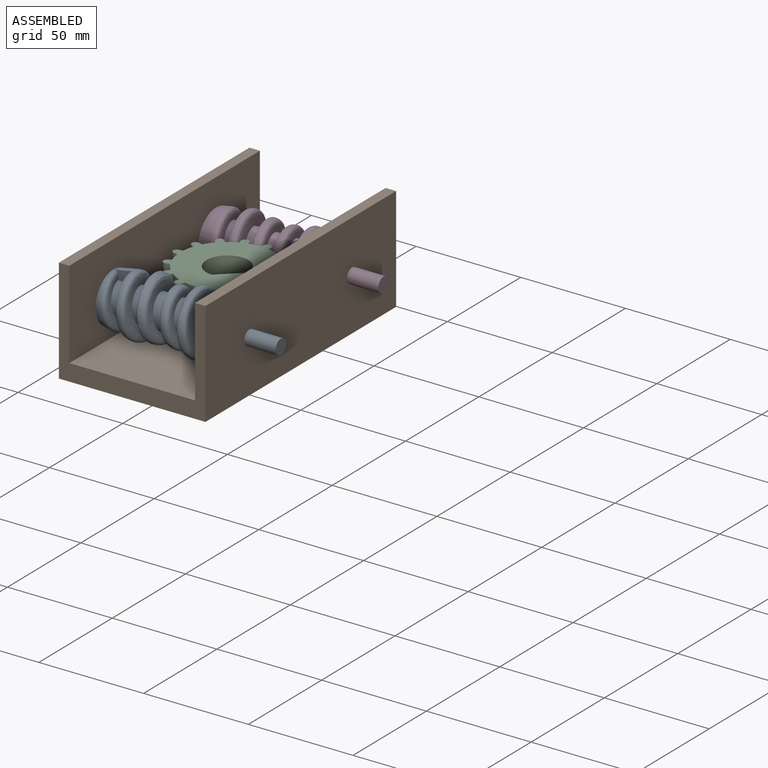
[diagram: subassembly S0 — assembled view]
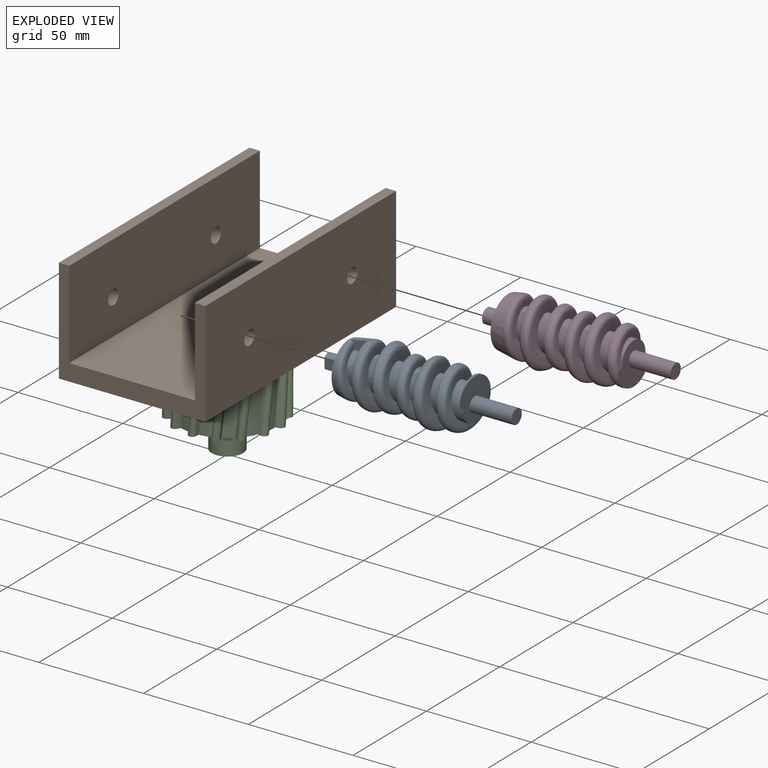
[diagram: subassembly S0 — exploded view]
SUBASSEMBLY S0 TOUR — 4 components, shown here in isolation at its own camera.

INTERNAL MATES
  1. REVOLUTE "Revolute 1": P5 <-> P0, axis (1.000, 0.000, 0.000) through (-30.00, -35.00, 25.00) mm
  2. REVOLUTE "Revolute 2": P8 <-> P5, axis (0.000, 0.000, 1.000) through (0.00, 0.00, 8.00) mm
  3. REVOLUTE "Revolute 3": P10 <-> P5, axis (1.000, 0.000, 0.000) through (-30.00, 35.00, 25.00) mm
  4. REVOLUTE "Revolute 1": P5 <-> P0, axis (1.000, 0.000, 0.000) through (-30.00, -35.00, 25.00) mm
  5. REVOLUTE "Revolute 3": P10 <-> P5, axis (1.000, 0.000, 0.000) through (-30.00, 35.00, 25.00) mm
  6. REVOLUTE "Revolute 2": P8 <-> P5, axis (0.000, 0.000, 1.000) through (0.00, 0.00, 8.00) mm

ASSEMBLY ORDER (within the subassembly)
  1. P5 — the base component [order heuristic]
  2. P0 [order heuristic]
  3. P8 [order heuristic]
  4. P10 [order heuristic]
Order-tag legend:
  [order heuristic] — this assembly is geometrically interlocked (no collision-free removal order exists), so components are listed in mate-graph order; insertion feasibility is not verified.
